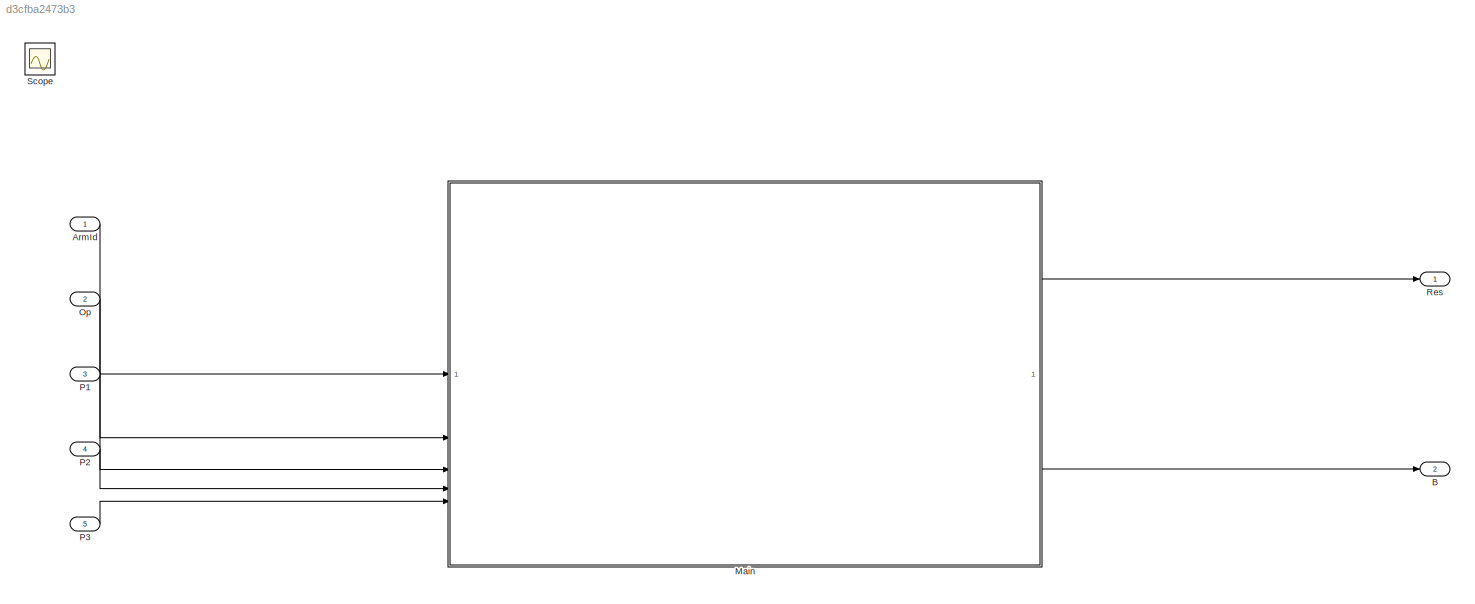
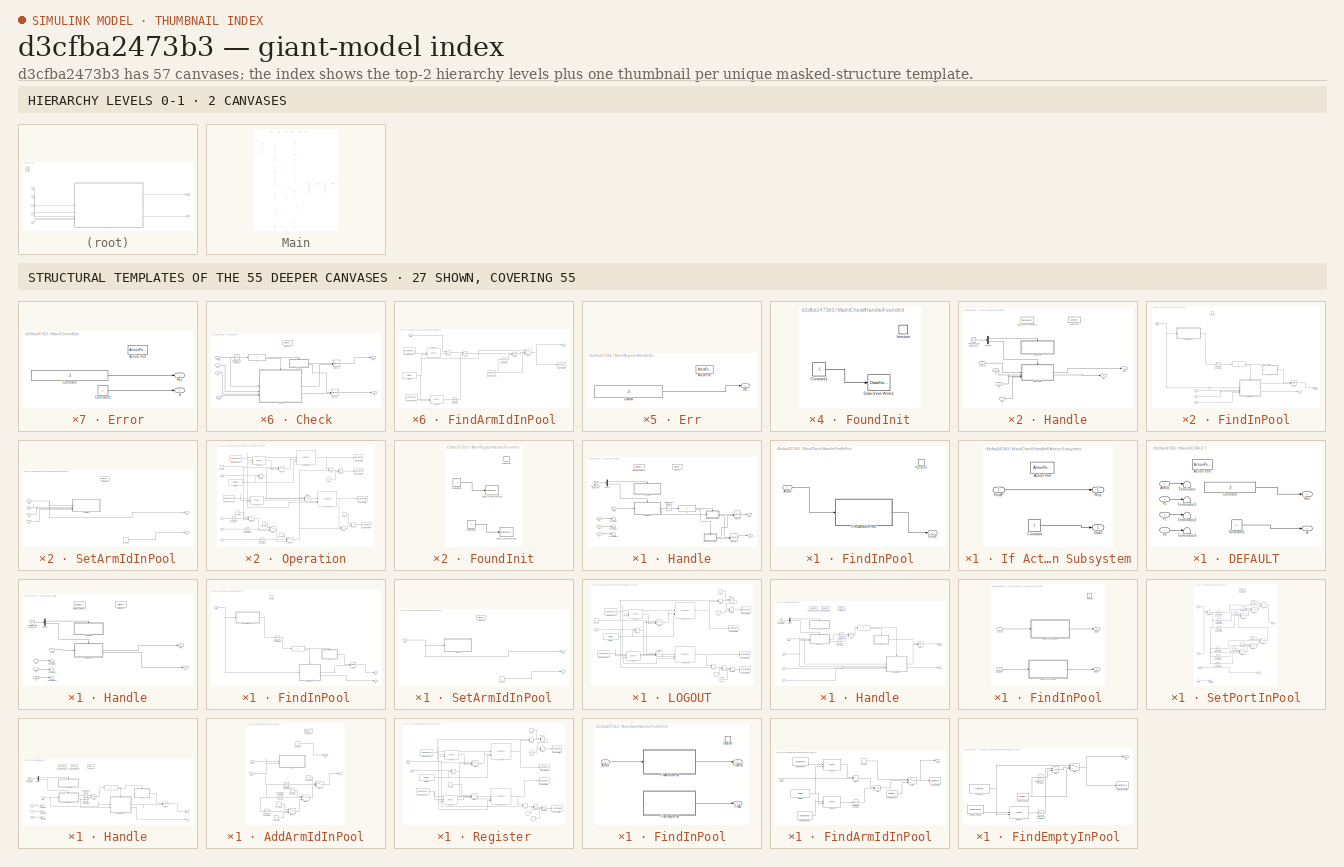
[diagram: thumbnail index - top-2 hierarchy levels (2 canvases) + 27 structural-template representatives of the remaining 55 canvases]
MODEL slx_d3cfba2473b3
KIND model
CONFIG AbsTol = auto
CONFIG EnableMultiTasking = off
CONFIG FixedStep = 1
CONFIG MaxStep = auto
CONFIG MinStep = auto
CONFIG RelTol = 1e-3
CONFIG SampleTimeConstraint = Unconstrained
CONFIG SolverName = FixedStepAuto
CONFIG StartTime = 0.0
CONFIG StopTime = 10.0
BLOCK [Inport] ArmId
  OutDataTypeStr = int32
BLOCK [Outport] B
  Port = 2
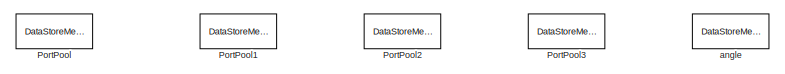
[diagram: Main - part 1/4, top center region]
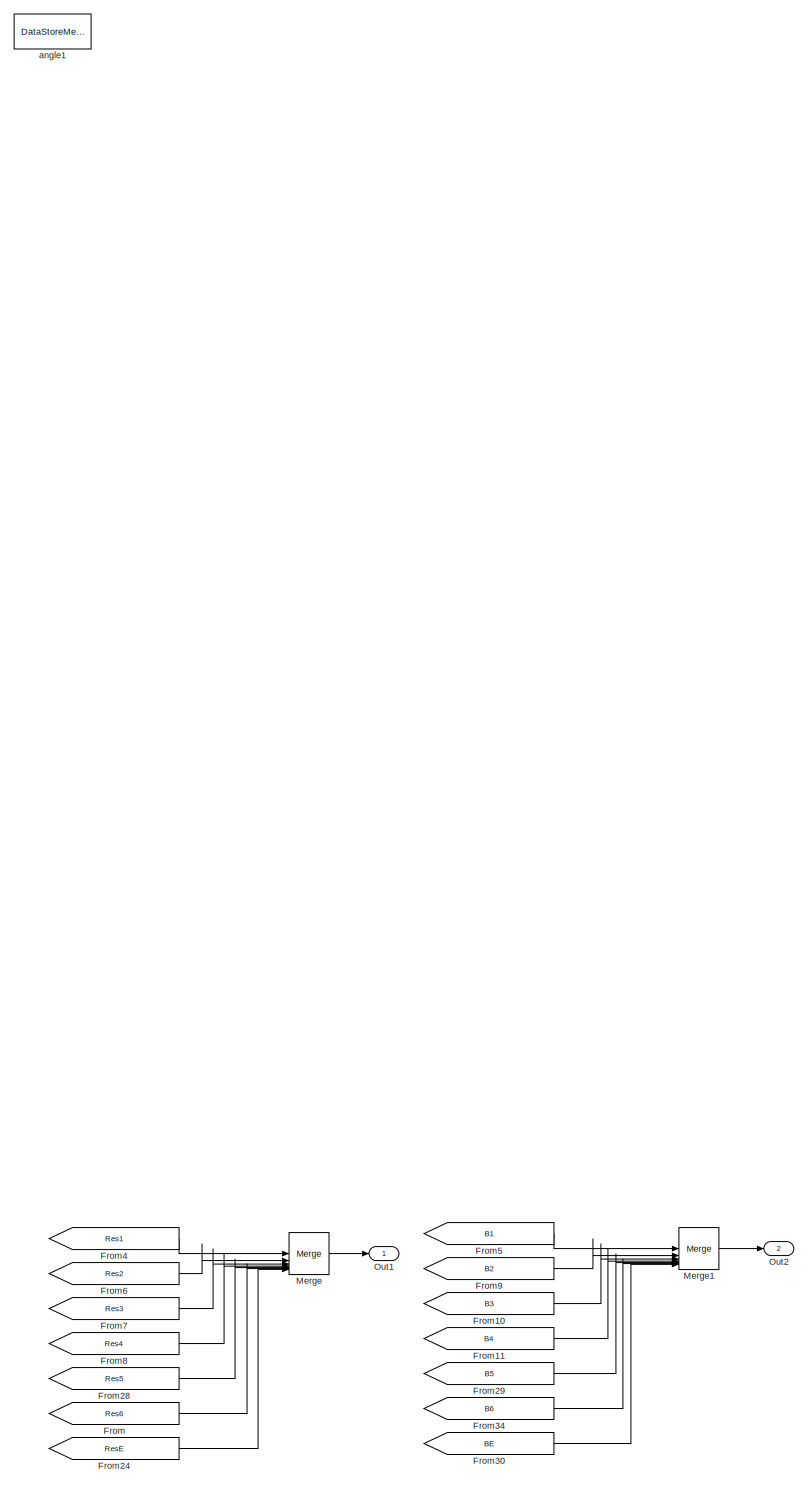
[diagram: Main - part 2/4, top right region]
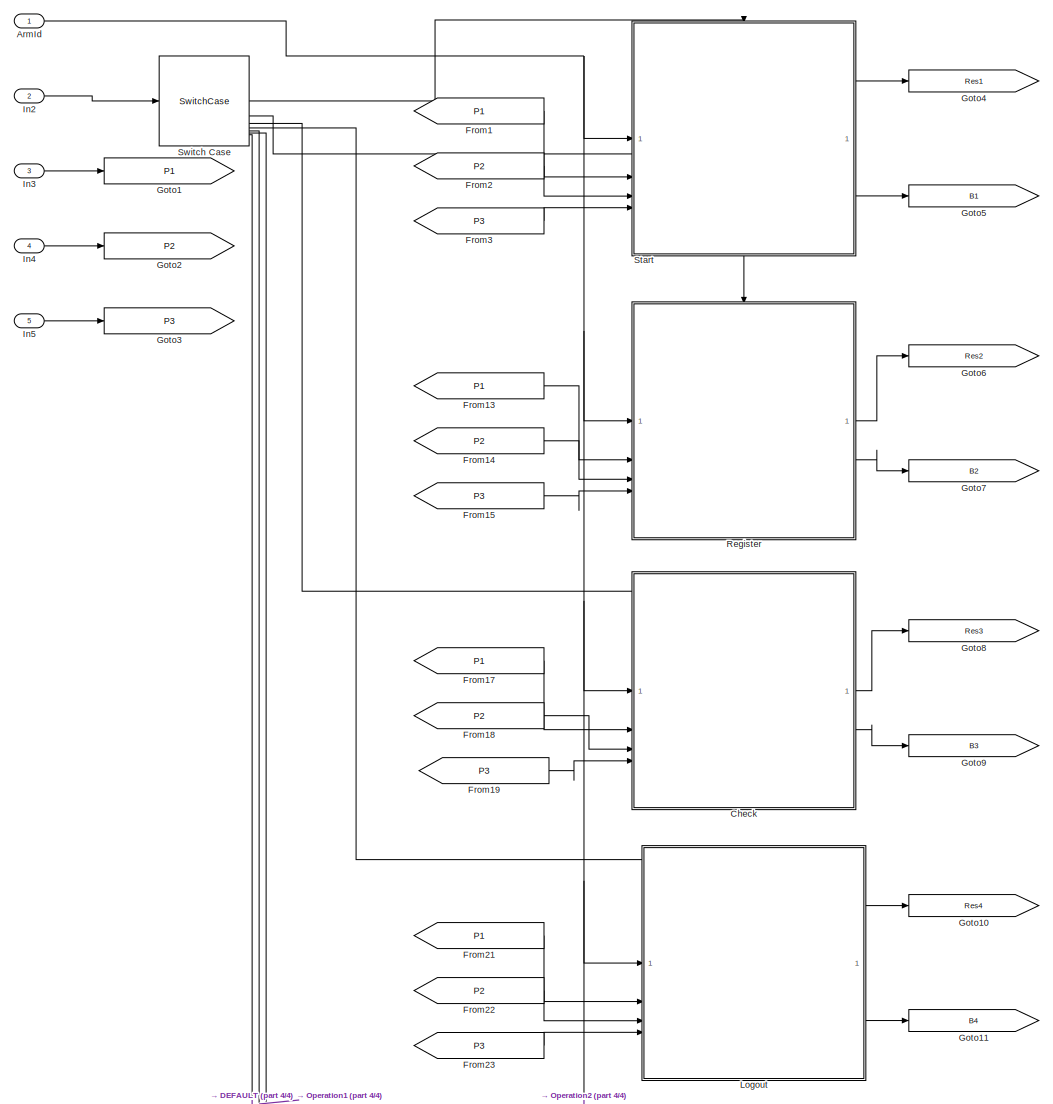
[diagram: Main - part 3/4, top left region]
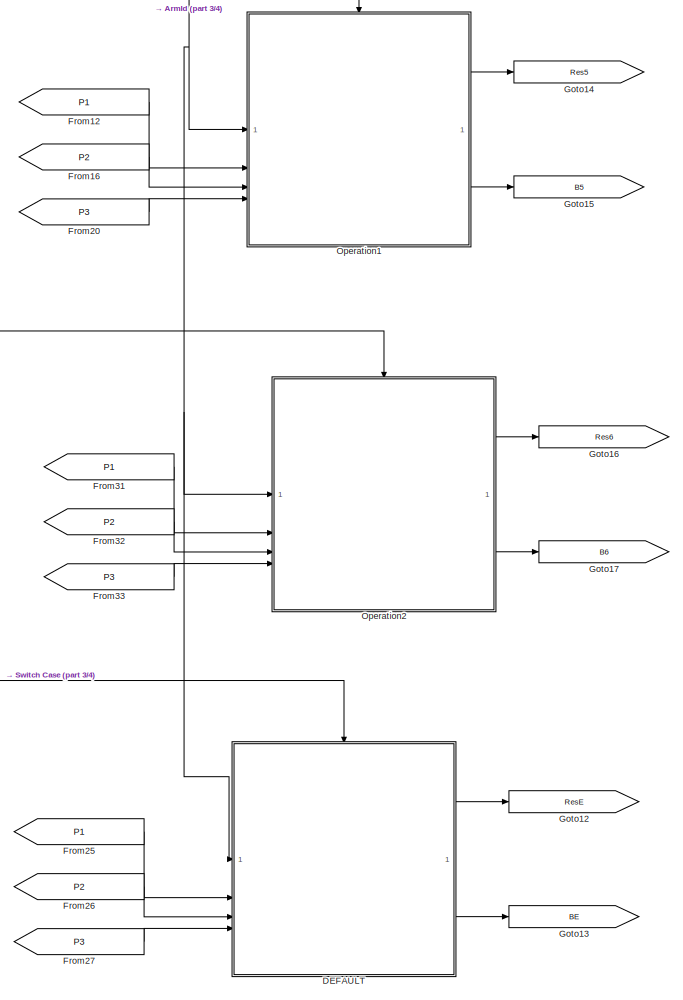
[diagram: Main - part 4/4, bottom center region]
BLOCK [SubSystem] Main
BLOCK [Inport] Main/ArmId
BLOCK [SubSystem] Main/Check
  TreatAsAtomicUnit = on
BLOCK [ActionPort] Main/Check/Action Port
  ActionPortLabel = case [ 10004 ]:
BLOCK [Inport] Main/Check/ArmId
BLOCK [Outport] Main/Check/B
  Port = 2
BLOCK [Reference] Main/Check/Compare To Constant  REF=simulink/Logic and Bit
Operations/Compare
To Constant
  SourceBlock = simulink/Logic and Bit\nOperations/Compare\nTo Constant
  SourceType = Compare To Constant
BLOCK [SubSystem] Main/Check/Error
  TreatAsAtomicUnit = on
BLOCK [ActionPort] Main/Check/Error/Action Port
  ActionPortLabel = if(u1 ~= 0)
BLOCK [Outport] Main/Check/Error/B
  Port = 2
BLOCK [Constant] Main/Check/Error/Constant
  OutDataTypeStr = int32
  Value = -1
BLOCK [Constant] Main/Check/Error/Constant1
  OutDataTypeStr = int32
  Value = 0
BLOCK [Outport] Main/Check/Error/Res
BLOCK [SubSystem] Main/Check/Handle
  TreatAsAtomicUnit = on
BLOCK [ActionPort] Main/Check/Handle/Action Port
  ActionPortLabel = else
BLOCK [Inport] Main/Check/Handle/ArmId
BLOCK [Outport] Main/Check/Handle/B
  Port = 2
BLOCK [Reference] Main/Check/Handle/Compare To Constant  REF=simulink/Logic and Bit
Operations/Compare
To Constant
  SourceBlock = simulink/Logic and Bit\nOperations/Compare\nTo Constant
  SourceType = Compare To Constant
BLOCK [DataStoreMemory] Main/Check/Handle/Data Store Memory1
  DataStoreName = FoundArm
  InitialValue = -1
  OutDataTypeStr = int32
  ShowAdditionalParam = off
  WriteAfterWriteMsg = warning
BLOCK [Demux] Main/Check/Handle/Demux
  Outputs = 2
BLOCK [SubSystem] Main/Check/Handle/FindInPool
BLOCK [Inport] Main/Check/Handle/FindInPool/ArmId
BLOCK [SubSystem] Main/Check/Handle/FindInPool/FindArmIdInPool
  TreatAsAtomicUnit = on
BLOCK [Logic] Main/Check/Handle/FindInPool/FindArmIdInPool/AND
  AllPortsSameDT = off
  IconShape = distinctive
  OutDataTypeStr = boolean
BLOCK [Logic] Main/Check/Handle/FindInPool/FindArmIdInPool/AND1
  AllPortsSameDT = off
  IconShape = distinctive
  OutDataTypeStr = boolean
BLOCK [Inport] Main/Check/Handle/FindInPool/FindArmIdInPool/ArmId
BLOCK [Reference] Main/Check/Handle/FindInPool/FindArmIdInPool/Compare To Constant  REF=simulink/Logic and Bit
Operations/Compare
To Constant
  SourceBlock = simulink/Logic and Bit\nOperations/Compare\nTo Constant
  SourceType = Compare To Constant
BLOCK [Reference] Main/Check/Handle/FindInPool/FindArmIdInPool/Compare To Constant1  REF=simulink/Logic and Bit
Operations/Compare
To Constant
  SourceBlock = simulink/Logic and Bit\nOperations/Compare\nTo Constant
  SourceType = Compare To Constant
BLOCK [DataStoreRead] Main/Check/Handle/FindInPool/FindArmIdInPool/Data Store Read
  DataStoreName = ArmIdPool
  IndexOptions = Index vector (dialog)
  Indices = 1
  OutputSizes = 1
BLOCK [DataStoreRead] Main/Check/Handle/FindInPool/FindArmIdInPool/Data Store Read1
  DataStoreName = FoundArm
  IndexOptions = Index vector (dialog)
  Indices = 1
  OutputSizes = 1
BLOCK [DataStoreRead] Main/Check/Handle/FindInPool/FindArmIdInPool/Data Store Read2
  DataStoreName = ArmIdPoolF
  IndexOptions = Index vector (dialog)
  Indices = 1
  OutputSizes = 1
BLOCK [DataStoreWrite] Main/Check/Handle/FindInPool/FindArmIdInPool/Data Store Write1
  DataStoreName = FoundArm
  IndexOptions = Index vector (dialog)
  Indices = 1
  OutputSizes = 1
BLOCK [RelationalOperator] Main/Check/Handle/FindInPool/FindArmIdInPool/Equal
  InputSameDT = off
  Operator = ==
  OutDataTypeStr = boolean
  RndMeth = Simplest
BLOCK [ForIterator] Main/Check/Handle/FindInPool/FindArmIdInPool/For Iterator
  IndexMode = Zero-based
  IterationLimit = POOL_SIZE
BLOCK [Outport] Main/Check/Handle/FindInPool/FindArmIdInPool/Out1
BLOCK [Selector] Main/Check/Handle/FindInPool/FindArmIdInPool/Selector
  IndexMode = Zero-based
  IndexOptions = Index vector (port)
  Indices = [1 3]
  InputPortWidth = POOL_SIZE
  OutputSizes = 1
BLOCK [Selector] Main/Check/Handle/FindInPool/FindArmIdInPool/Selector1
  IndexMode = Zero-based
  IndexOptions = Index vector (port)
  Indices = [1 3]
  InputPortWidth = POOL_SIZE
  OutputSizes = 1
BLOCK [Switch] Main/Check/Handle/FindInPool/FindArmIdInPool/Switch
  Criteria = u2 ~= 0
  InputSameDT = off
  SaturateOnIntegerOverflow = off
BLOCK [Outport] Main/Check/Handle/FindInPool/FindP
BLOCK [TriggerPort] Main/Check/Handle/FindInPool/function
  StatesWhenEnabling = held
  TriggerType = function-call
  VariantControl = (inherit)
BLOCK [SubSystem] Main/Check/Handle/FoundInit
BLOCK [Constant] Main/Check/Handle/FoundInit/Constant1
  OutDataTypeStr = int32
  Value = -1
BLOCK [DataStoreWrite] Main/Check/Handle/FoundInit/Data Store Write1
  DataStoreName = FoundArm
  IndexOptions = Index vector (dialog)
  Indices = 1
  OutputSizes = 1
BLOCK [TriggerPort] Main/Check/Handle/FoundInit/function
  StatesWhenEnabling = held
  TriggerType = function-call
  VariantControl = (inherit)
BLOCK [Reference] Main/Check/Handle/Function-Call Generator  REF=simulink/Ports &
Subsystems/Function-Call
Generator
  SourceBlock = simulink/Ports &\nSubsystems/Function-Call\nGenerator
  SourceType = Function-Call Generator
BLOCK [If] Main/Check/Handle/If
  IfExpression = u1 ~= 0
BLOCK [SubSystem] Main/Check/Handle/If Action Subsystem
  TreatAsAtomicUnit = on
BLOCK [ActionPort] Main/Check/Handle/If Action Subsystem/Action Port
  ActionPortLabel = if(u1 ~= 0)
BLOCK [Constant] Main/Check/Handle/If Action Subsystem/Constant
  OutDataTypeStr = int32
BLOCK [Inport] Main/Check/Handle/If Action Subsystem/FindP
BLOCK [Outport] Main/Check/Handle/If Action Subsystem/Out2
  Port = 2
BLOCK [Outport] Main/Check/Handle/If Action Subsystem/Res
BLOCK [SubSystem] Main/Check/Handle/If Action Subsystem1
  TreatAsAtomicUnit = on
BLOCK [ActionPort] Main/Check/Handle/If Action Subsystem1/Action Port
  ActionPortLabel = else
BLOCK [Constant] Main/Check/Handle/If Action Subsystem1/Constant
  OutDataTypeStr = int32
  Value = -1
BLOCK [Constant] Main/Check/Handle/If Action Subsystem1/Constant1
  OutDataTypeStr = int32
  Value = -1
BLOCK [Outport] Main/Check/Handle/If Action Subsystem1/Out2
  Port = 2
BLOCK [Outport] Main/Check/Handle/If Action Subsystem1/Res
BLOCK [Merge] Main/Check/Handle/Merge
BLOCK [Merge] Main/Check/Handle/Merge1
BLOCK [Inport] Main/Check/Handle/P1
  Port = 2
BLOCK [Inport] Main/Check/Handle/P2
  Port = 3
BLOCK [Inport] Main/Check/Handle/P3
  Port = 4
BLOCK [Outport] Main/Check/Handle/Res
BLOCK [Terminator] Main/Check/Handle/Terminator
BLOCK [Terminator] Main/Check/Handle/Terminator1
BLOCK [Terminator] Main/Check/Handle/Terminator2
BLOCK [If] Main/Check/If
  IfExpression = u1 ~= 0
BLOCK [Merge] Main/Check/Merge
BLOCK [Merge] Main/Check/Merge1
BLOCK [Inport] Main/Check/P1
  Port = 2
BLOCK [Inport] Main/Check/P2
  Port = 3
BLOCK [Inport] Main/Check/P3
  Port = 4
BLOCK [Outport] Main/Check/Res
BLOCK [SubSystem] Main/DEFAULT
  TreatAsAtomicUnit = on
BLOCK [ActionPort] Main/DEFAULT/Action Port
  ActionPortLabel = default:
BLOCK [Inport] Main/DEFAULT/ArmId
BLOCK [Outport] Main/DEFAULT/B
  Port = 2
BLOCK [Constant] Main/DEFAULT/Constant
  OutDataTypeStr = int32
  Value = -2
BLOCK [Constant] Main/DEFAULT/Constant1
  OutDataTypeStr = int32
  Value = 0
BLOCK [Inport] Main/DEFAULT/P1
  Port = 2
BLOCK [Inport] Main/DEFAULT/P2
  Port = 3
BLOCK [Inport] Main/DEFAULT/P3
  Port = 4
BLOCK [Outport] Main/DEFAULT/Res
BLOCK [Terminator] Main/DEFAULT/Terminator
BLOCK [Terminator] Main/DEFAULT/Terminator1
BLOCK [Terminator] Main/DEFAULT/Terminator2
BLOCK [Terminator] Main/DEFAULT/Terminator3
BLOCK [From] Main/From
  GotoTag = Res6
BLOCK [From] Main/From1
  GotoTag = P1
BLOCK [From] Main/From10
  GotoTag = B3
BLOCK [From] Main/From11
  GotoTag = B4
BLOCK [From] Main/From12
  GotoTag = P1
BLOCK [From] Main/From13
  GotoTag = P1
BLOCK [From] Main/From14
  GotoTag = P2
BLOCK [From] Main/From15
  GotoTag = P3
BLOCK [From] Main/From16
  GotoTag = P2
BLOCK [From] Main/From17
  GotoTag = P1
BLOCK [From] Main/From18
  GotoTag = P2
BLOCK [From] Main/From19
  GotoTag = P3
BLOCK [From] Main/From2
  GotoTag = P2
BLOCK [From] Main/From20
  GotoTag = P3
BLOCK [From] Main/From21
  GotoTag = P1
BLOCK [From] Main/From22
  GotoTag = P2
BLOCK [From] Main/From23
  GotoTag = P3
BLOCK [From] Main/From24
  GotoTag = ResE
BLOCK [From] Main/From25
  GotoTag = P1
BLOCK [From] Main/From26
  GotoTag = P2
BLOCK [From] Main/From27
  GotoTag = P3
BLOCK [From] Main/From28
  GotoTag = Res5
BLOCK [From] Main/From29
  GotoTag = B5
BLOCK [From] Main/From3
  GotoTag = P3
BLOCK [From] Main/From30
  GotoTag = BE
BLOCK [From] Main/From31
  GotoTag = P1
BLOCK [From] Main/From32
  GotoTag = P2
BLOCK [From] Main/From33
  GotoTag = P3
BLOCK [From] Main/From34
  GotoTag = B6
BLOCK [From] Main/From4
  GotoTag = Res1
BLOCK [From] Main/From5
  GotoTag = B1
BLOCK [From] Main/From6
  GotoTag = Res2
BLOCK [From] Main/From7
  GotoTag = Res3
BLOCK [From] Main/From8
  GotoTag = Res4
BLOCK [From] Main/From9
  GotoTag = B2
BLOCK [Goto] Main/Goto1
  GotoTag = P1
BLOCK [Goto] Main/Goto10
  GotoTag = Res4
BLOCK [Goto] Main/Goto11
  GotoTag = B4
BLOCK [Goto] Main/Goto12
  GotoTag = ResE
BLOCK [Goto] Main/Goto13
  GotoTag = BE
BLOCK [Goto] Main/Goto14
  GotoTag = Res5
BLOCK [Goto] Main/Goto15
  GotoTag = B5
BLOCK [Goto] Main/Goto16
  GotoTag = Res6
BLOCK [Goto] Main/Goto17
  GotoTag = B6
BLOCK [Goto] Main/Goto2
  GotoTag = P2
BLOCK [Goto] Main/Goto3
  GotoTag = P3
BLOCK [Goto] Main/Goto4
  GotoTag = Res1
BLOCK [Goto] Main/Goto5
  GotoTag = B1
BLOCK [Goto] Main/Goto6
  GotoTag = Res2
BLOCK [Goto] Main/Goto7
  GotoTag = B2
BLOCK [Goto] Main/Goto8
  GotoTag = Res3
BLOCK [Goto] Main/Goto9
  GotoTag = B3
BLOCK [Inport] Main/In2
  Port = 2
BLOCK [Inport] Main/In3
  Port = 3
BLOCK [Inport] Main/In4
  Port = 4
BLOCK [Inport] Main/In5
  Port = 5
BLOCK [SubSystem] Main/Logout
  TreatAsAtomicUnit = on
BLOCK [ActionPort] Main/Logout/Action Port
  ActionPortLabel = case [ 10008 ]:
BLOCK [Inport] Main/Logout/ArmId
BLOCK [Outport] Main/Logout/B
  Port = 2
BLOCK [Reference] Main/Logout/Compare To Constant  REF=simulink/Logic and Bit
Operations/Compare
To Constant
  SourceBlock = simulink/Logic and Bit\nOperations/Compare\nTo Constant
  SourceType = Compare To Constant
BLOCK [SubSystem] Main/Logout/Error
  TreatAsAtomicUnit = on
BLOCK [ActionPort] Main/Logout/Error/Action Port
  ActionPortLabel = if(u1 ~= 0)
BLOCK [Outport] Main/Logout/Error/B
  Port = 2
BLOCK [Constant] Main/Logout/Error/Constant
  OutDataTypeStr = int32
  Value = -1
BLOCK [Constant] Main/Logout/Error/Constant1
  OutDataTypeStr = int32
  Value = 0
BLOCK [Outport] Main/Logout/Error/Res
BLOCK [SubSystem] Main/Logout/Handle
  TreatAsAtomicUnit = on
BLOCK [ActionPort] Main/Logout/Handle/Action Port
  ActionPortLabel = else
BLOCK [Inport] Main/Logout/Handle/ArmId
BLOCK [Outport] Main/Logout/Handle/B
  Port = 2
BLOCK [DataStoreMemory] Main/Logout/Handle/Data Store Memory1
  DataStoreName = FoundArm
  InitialValue = -1
  OutDataTypeStr = int32
  ShowAdditionalParam = off
  WriteAfterWriteMsg = warning
BLOCK [Demux] Main/Logout/Handle/Demux
  Outputs = 2
BLOCK [SubSystem] Main/Logout/Handle/FindInPool
BLOCK [Inport] Main/Logout/Handle/FindInPool/ArmId
BLOCK [Outport] Main/Logout/Handle/FindInPool/B
  Port = 2
BLOCK [Reference] Main/Logout/Handle/FindInPool/Compare To Constant1  REF=simulink/Logic and Bit
Operations/Compare
To Constant
  SourceBlock = simulink/Logic and Bit\nOperations/Compare\nTo Constant
  SourceType = Compare To Constant
BLOCK [SubSystem] Main/Logout/Handle/FindInPool/Err
  TreatAsAtomicUnit = on
BLOCK [ActionPort] Main/Logout/Handle/FindInPool/Err/Action Port
  ActionPortLabel = if(u1 ~= 0)
BLOCK [Constant] Main/Logout/Handle/FindInPool/Err/Constant
  OutDataTypeStr = int32
  Value = -3
BLOCK [Outport] Main/Logout/Handle/FindInPool/Err/Res
BLOCK [SubSystem] Main/Logout/Handle/FindInPool/FindArmIdInPool
  TreatAsAtomicUnit = on
BLOCK [Logic] Main/Logout/Handle/FindInPool/FindArmIdInPool/AND
  AllPortsSameDT = off
  IconShape = distinctive
  OutDataTypeStr = boolean
BLOCK [Logic] Main/Logout/Handle/FindInPool/FindArmIdInPool/AND1
  AllPortsSameDT = off
  IconShape = distinctive
  OutDataTypeStr = boolean
BLOCK [Inport] Main/Logout/Handle/FindInPool/FindArmIdInPool/ArmId
BLOCK [Reference] Main/Logout/Handle/FindInPool/FindArmIdInPool/Compare To Constant  REF=simulink/Logic and Bit
Operations/Compare
To Constant
  SourceBlock = simulink/Logic and Bit\nOperations/Compare\nTo Constant
  SourceType = Compare To Constant
BLOCK [Reference] Main/Logout/Handle/FindInPool/FindArmIdInPool/Compare To Constant1  REF=simulink/Logic and Bit
Operations/Compare
To Constant
  SourceBlock = simulink/Logic and Bit\nOperations/Compare\nTo Constant
  SourceType = Compare To Constant
BLOCK [DataStoreRead] Main/Logout/Handle/FindInPool/FindArmIdInPool/Data Store Read
  DataStoreName = ArmIdPool
  IndexOptions = Index vector (dialog)
  Indices = 1
  OutputSizes = 1
BLOCK [DataStoreRead] Main/Logout/Handle/FindInPool/FindArmIdInPool/Data Store Read1
  DataStoreName = FoundArm
  IndexOptions = Index vector (dialog)
  Indices = 1
  OutputSizes = 1
BLOCK [DataStoreRead] Main/Logout/Handle/FindInPool/FindArmIdInPool/Data Store Read2
  DataStoreName = ArmIdPoolF
  IndexOptions = Index vector (dialog)
  Indices = 1
  OutputSizes = 1
BLOCK [DataStoreWrite] Main/Logout/Handle/FindInPool/FindArmIdInPool/Data Store Write1
  DataStoreName = FoundArm
  IndexOptions = Index vector (dialog)
  Indices = 1
  OutputSizes = 1
BLOCK [RelationalOperator] Main/Logout/Handle/FindInPool/FindArmIdInPool/Equal
  InputSameDT = off
  Operator = ==
  OutDataTypeStr = boolean
  RndMeth = Simplest
BLOCK [ForIterator] Main/Logout/Handle/FindInPool/FindArmIdInPool/For Iterator
  IndexMode = Zero-based
  IterationLimit = POOL_SIZE
BLOCK [Outport] Main/Logout/Handle/FindInPool/FindArmIdInPool/Out1
BLOCK [Selector] Main/Logout/Handle/FindInPool/FindArmIdInPool/Selector
  IndexMode = Zero-based
  IndexOptions = Index vector (port)
  Indices = [1 3]
  InputPortWidth = POOL_SIZE
  OutputSizes = 1
BLOCK [Selector] Main/Logout/Handle/FindInPool/FindArmIdInPool/Selector1
  IndexMode = Zero-based
  IndexOptions = Index vector (port)
  Indices = [1 3]
  InputPortWidth = POOL_SIZE
  OutputSizes = 1
BLOCK [Switch] Main/Logout/Handle/FindInPool/FindArmIdInPool/Switch
  Criteria = u2 ~= 0
  InputSameDT = off
  SaturateOnIntegerOverflow = off
BLOCK [If] Main/Logout/Handle/FindInPool/If
  IfExpression = u1 ~= 0
BLOCK [Merge] Main/Logout/Handle/FindInPool/Merge
BLOCK [Outport] Main/Logout/Handle/FindInPool/Res
BLOCK [SubSystem] Main/Logout/Handle/FindInPool/SetArmIdInPool
  TreatAsAtomicUnit = on
BLOCK [ActionPort] Main/Logout/Handle/FindInPool/SetArmIdInPool/Action Port
  ActionPortLabel = else
BLOCK [Inport] Main/Logout/Handle/FindInPool/SetArmIdInPool/ArmId
BLOCK [Outport] Main/Logout/Handle/FindInPool/SetArmIdInPool/B
  Port = 2
BLOCK [Constant] Main/Logout/Handle/FindInPool/SetArmIdInPool/Constant
  OutDataTypeStr = int32
BLOCK [SubSystem] Main/Logout/Handle/FindInPool/SetArmIdInPool/LOGOUT
  TreatAsAtomicUnit = on
BLOCK [Sum] Main/Logout/Handle/FindInPool/SetArmIdInPool/LOGOUT/Add
  IconShape = rectangular
  OutDataTypeStr = int32
BLOCK [Sum] Main/Logout/Handle/FindInPool/SetArmIdInPool/LOGOUT/Add1
  IconShape = rectangular
  OutDataTypeStr = int32
BLOCK [Assignment] Main/Logout/Handle/FindInPool/SetArmIdInPool/LOGOUT/Assignment
  DiagnosticForDimensions = Warning
  IndexMode = Zero-based
  IndexOptions = Index vector (port)
  Indices = 1
  OutputSizes = 1
BLOCK [Assignment] Main/Logout/Handle/FindInPool/SetArmIdInPool/LOGOUT/Assignment1
  DiagnosticForDimensions = Warning
  IndexMode = Zero-based
  IndexOptions = Index vector (port)
  Indices = 1
  OutputSizes = 1
BLOCK [Constant] Main/Logout/Handle/FindInPool/SetArmIdInPool/LOGOUT/Constant
  OutDataTypeStr = int32
  Value = 0
BLOCK [DataStoreRead] Main/Logout/Handle/FindInPool/SetArmIdInPool/LOGOUT/Data Store Read
  DataStoreName = ArmIdPool
  IndexOptions = Index vector (dialog)
  Indices = 1
  OutputSizes = 1
BLOCK [DataStoreRead] Main/Logout/Handle/FindInPool/SetArmIdInPool/LOGOUT/Data Store Read2
  DataStoreName = ArmIdPoolF
  IndexOptions = Index vector (dialog)
  Indices = 1
  OutputSizes = 1
BLOCK [DataStoreWrite] Main/Logout/Handle/FindInPool/SetArmIdInPool/LOGOUT/Data Store Write2
  DataStoreName = ArmIdPool
  IndexOptions = Index vector (dialog)
  Indices = 1
  OutputSizes = 1
BLOCK [DataStoreWrite] Main/Logout/Handle/FindInPool/SetArmIdInPool/LOGOUT/Data Store Write3
  DataStoreName = ArmIdPoolF
  IndexOptions = Index vector (dialog)
  Indices = 1
  OutputSizes = 1
BLOCK [DataStoreWrite] Main/Logout/Handle/FindInPool/SetArmIdInPool/LOGOUT/Data Store Write4
  DataStoreName = ArmIdPool_C
  IndexOptions = Index vector (dialog)
  Indices = 1
  OutputSizes = 1
BLOCK [DataStoreWrite] Main/Logout/Handle/FindInPool/SetArmIdInPool/LOGOUT/Data Store Write5
  DataStoreName = ArmIdPoolF_C
  IndexOptions = Index vector (dialog)
  Indices = 1
  OutputSizes = 1
BLOCK [RelationalOperator] Main/Logout/Handle/FindInPool/SetArmIdInPool/LOGOUT/Equal
  InputSameDT = off
  Operator = ==
  OutDataTypeStr = boolean
  RndMeth = Simplest
BLOCK [Inport] Main/Logout/Handle/FindInPool/SetArmIdInPool/LOGOUT/FindP
BLOCK [ForIterator] Main/Logout/Handle/FindInPool/SetArmIdInPool/LOGOUT/For Iterator
  IndexMode = Zero-based
  IterationLimit = POOL_SIZE
BLOCK [Product] Main/Logout/Handle/FindInPool/SetArmIdInPool/LOGOUT/Product
  OutDataTypeStr = int32
BLOCK [Product] Main/Logout/Handle/FindInPool/SetArmIdInPool/LOGOUT/Product1
  OutDataTypeStr = int32
BLOCK [Selector] Main/Logout/Handle/FindInPool/SetArmIdInPool/LOGOUT/Selector
  IndexMode = Zero-based
  IndexOptions = Index vector (port)
  Indices = [1 3]
  InputPortWidth = POOL_SIZE
  OutputSizes = 1
BLOCK [Selector] Main/Logout/Handle/FindInPool/SetArmIdInPool/LOGOUT/Selector1
  IndexMode = Zero-based
  IndexOptions = Index vector (port)
  Indices = [1 3]
  InputPortWidth = POOL_SIZE
  OutputSizes = 1
BLOCK [Sum] Main/Logout/Handle/FindInPool/SetArmIdInPool/LOGOUT/Subtract
  IconShape = rectangular
  Inputs = +-
  OutDataTypeStr = int32
BLOCK [Sum] Main/Logout/Handle/FindInPool/SetArmIdInPool/LOGOUT/Subtract1
  IconShape = rectangular
  Inputs = +-
  OutDataTypeStr = int32
BLOCK [Switch] Main/Logout/Handle/FindInPool/SetArmIdInPool/LOGOUT/Switch
  Criteria = u2 > Threshold
  InputSameDT = off
  SaturateOnIntegerOverflow = off
BLOCK [Switch] Main/Logout/Handle/FindInPool/SetArmIdInPool/LOGOUT/Switch1
  Criteria = u2 > Threshold
  InputSameDT = off
  SaturateOnIntegerOverflow = off
BLOCK [Constant] Main/Logout/Handle/FindInPool/SetArmIdInPool/LOGOUT/T
  OutDataTypeStr = int32
  Value = 4
BLOCK [Constant] Main/Logout/Handle/FindInPool/SetArmIdInPool/LOGOUT/delta
  OutDataTypeStr = int32
  Value = 3
BLOCK [Constant] Main/Logout/Handle/FindInPool/SetArmIdInPool/LOGOUT/key
  OutDataTypeStr = int32
  Value = 201
BLOCK [Constant] Main/Logout/Handle/FindInPool/SetArmIdInPool/LOGOUT/key1
  OutDataTypeStr = int32
  Value = 201
BLOCK [Outport] Main/Logout/Handle/FindInPool/SetArmIdInPool/Res
BLOCK [TriggerPort] Main/Logout/Handle/FindInPool/function
  StatesWhenEnabling = held
  TriggerType = function-call
  VariantControl = (inherit)
BLOCK [SubSystem] Main/Logout/Handle/FoundInit
BLOCK [Constant] Main/Logout/Handle/FoundInit/Constant1
  OutDataTypeStr = int32
  Value = -1
BLOCK [DataStoreWrite] Main/Logout/Handle/FoundInit/Data Store Write1
  DataStoreName = FoundArm
  IndexOptions = Index vector (dialog)
  Indices = 1
  OutputSizes = 1
BLOCK [TriggerPort] Main/Logout/Handle/FoundInit/function
  StatesWhenEnabling = held
  TriggerType = function-call
  VariantControl = (inherit)
BLOCK [Reference] Main/Logout/Handle/Function-Call Generator  REF=simulink/Ports &
Subsystems/Function-Call
Generator
  SourceBlock = simulink/Ports &\nSubsystems/Function-Call\nGenerator
  SourceType = Function-Call Generator
BLOCK [Inport] Main/Logout/Handle/P1
  Port = 2
BLOCK [Inport] Main/Logout/Handle/P2
  Port = 3
BLOCK [Inport] Main/Logout/Handle/P3
  Port = 4
BLOCK [Outport] Main/Logout/Handle/Res
BLOCK [Terminator] Main/Logout/Handle/Terminator
BLOCK [Terminator] Main/Logout/Handle/Terminator1
BLOCK [Terminator] Main/Logout/Handle/Terminator2
BLOCK [If] Main/Logout/If
  IfExpression = u1 ~= 0
BLOCK [Merge] Main/Logout/Merge
BLOCK [Merge] Main/Logout/Merge1
BLOCK [Inport] Main/Logout/P1
  Port = 2
BLOCK [Inport] Main/Logout/P2
  Port = 3
BLOCK [Inport] Main/Logout/P3
  Port = 4
BLOCK [Outport] Main/Logout/Res
BLOCK [Merge] Main/Merge
  Inputs = 7
BLOCK [Merge] Main/Merge1
  Inputs = 7
BLOCK [SubSystem] Main/Operation1
  TreatAsAtomicUnit = on
BLOCK [ActionPort] Main/Operation1/Action Port
  ActionPortLabel = case [ 10016 ]:
BLOCK [Inport] Main/Operation1/ArmId
BLOCK [Outport] Main/Operation1/B
  Port = 2
BLOCK [Reference] Main/Operation1/Compare To Constant  REF=simulink/Logic and Bit
Operations/Compare
To Constant
  SourceBlock = simulink/Logic and Bit\nOperations/Compare\nTo Constant
  SourceType = Compare To Constant
BLOCK [SubSystem] Main/Operation1/Error
  TreatAsAtomicUnit = on
BLOCK [ActionPort] Main/Operation1/Error/Action Port
  ActionPortLabel = if(u1 ~= 0)
BLOCK [Outport] Main/Operation1/Error/B
  Port = 2
BLOCK [Constant] Main/Operation1/Error/Constant
  OutDataTypeStr = int32
  Value = -1
BLOCK [Constant] Main/Operation1/Error/Constant1
  OutDataTypeStr = int32
  Value = 0
BLOCK [Outport] Main/Operation1/Error/Res
BLOCK [SubSystem] Main/Operation1/Handle
  TreatAsAtomicUnit = on
BLOCK [ActionPort] Main/Operation1/Handle/Action Port
  ActionPortLabel = else
BLOCK [Inport] Main/Operation1/Handle/ArmId
BLOCK [Outport] Main/Operation1/Handle/B
  Port = 2
BLOCK [DataStoreMemory] Main/Operation1/Handle/Data Store Memory1
  DataStoreName = FoundArm
  InitialValue = -1
  OutDataTypeStr = int32
  ShowAdditionalParam = off
  WriteAfterWriteMsg = warning
BLOCK [Demux] Main/Operation1/Handle/Demux
  Outputs = 2
BLOCK [SubSystem] Main/Operation1/Handle/FindInPool
BLOCK [Inport] Main/Operation1/Handle/FindInPool/ArmId
BLOCK [Outport] Main/Operation1/Handle/FindInPool/B
  Port = 2
BLOCK [Reference] Main/Operation1/Handle/FindInPool/Compare To Constant1  REF=simulink/Logic and Bit
Operations/Compare
To Constant
  SourceBlock = simulink/Logic and Bit\nOperations/Compare\nTo Constant
  SourceType = Compare To Constant
BLOCK [SubSystem] Main/Operation1/Handle/FindInPool/Err
  TreatAsAtomicUnit = on
BLOCK [ActionPort] Main/Operation1/Handle/FindInPool/Err/Action Port
  ActionPortLabel = if(u1 ~= 0)
BLOCK [Constant] Main/Operation1/Handle/FindInPool/Err/Constant
  OutDataTypeStr = int32
  Value = -3
BLOCK [Outport] Main/Operation1/Handle/FindInPool/Err/Res
BLOCK [SubSystem] Main/Operation1/Handle/FindInPool/FindArmIdInPool
  TreatAsAtomicUnit = on
BLOCK [Logic] Main/Operation1/Handle/FindInPool/FindArmIdInPool/AND
  AllPortsSameDT = off
  IconShape = distinctive
  OutDataTypeStr = boolean
BLOCK [Logic] Main/Operation1/Handle/FindInPool/FindArmIdInPool/AND1
  AllPortsSameDT = off
  IconShape = distinctive
  OutDataTypeStr = boolean
BLOCK [Inport] Main/Operation1/Handle/FindInPool/FindArmIdInPool/ArmId
BLOCK [Reference] Main/Operation1/Handle/FindInPool/FindArmIdInPool/Compare To Constant  REF=simulink/Logic and Bit
Operations/Compare
To Constant
  SourceBlock = simulink/Logic and Bit\nOperations/Compare\nTo Constant
  SourceType = Compare To Constant
BLOCK [Reference] Main/Operation1/Handle/FindInPool/FindArmIdInPool/Compare To Constant1  REF=simulink/Logic and Bit
Operations/Compare
To Constant
  SourceBlock = simulink/Logic and Bit\nOperations/Compare\nTo Constant
  SourceType = Compare To Constant
BLOCK [DataStoreRead] Main/Operation1/Handle/FindInPool/FindArmIdInPool/Data Store Read
  DataStoreName = ArmIdPool
  IndexOptions = Index vector (dialog)
  Indices = 1
  OutputSizes = 1
BLOCK [DataStoreRead] Main/Operation1/Handle/FindInPool/FindArmIdInPool/Data Store Read1
  DataStoreName = FoundArm
  IndexOptions = Index vector (dialog)
  Indices = 1
  OutputSizes = 1
BLOCK [DataStoreRead] Main/Operation1/Handle/FindInPool/FindArmIdInPool/Data Store Read2
  DataStoreName = ArmIdPoolF
  IndexOptions = Index vector (dialog)
  Indices = 1
  OutputSizes = 1
BLOCK [DataStoreWrite] Main/Operation1/Handle/FindInPool/FindArmIdInPool/Data Store Write1
  DataStoreName = FoundArm
  IndexOptions = Index vector (dialog)
  Indices = 1
  OutputSizes = 1
BLOCK [RelationalOperator] Main/Operation1/Handle/FindInPool/FindArmIdInPool/Equal
  InputSameDT = off
  Operator = ==
  OutDataTypeStr = boolean
  RndMeth = Simplest
BLOCK [ForIterator] Main/Operation1/Handle/FindInPool/FindArmIdInPool/For Iterator
  IndexMode = Zero-based
  IterationLimit = POOL_SIZE
BLOCK [Outport] Main/Operation1/Handle/FindInPool/FindArmIdInPool/Out1
BLOCK [Selector] Main/Operation1/Handle/FindInPool/FindArmIdInPool/Selector
  IndexMode = Zero-based
  IndexOptions = Index vector (port)
  Indices = [1 3]
  InputPortWidth = POOL_SIZE
  OutputSizes = 1
BLOCK [Selector] Main/Operation1/Handle/FindInPool/FindArmIdInPool/Selector1
  IndexMode = Zero-based
  IndexOptions = Index vector (port)
  Indices = [1 3]
  InputPortWidth = POOL_SIZE
  OutputSizes = 1
BLOCK [Switch] Main/Operation1/Handle/FindInPool/FindArmIdInPool/Switch
  Criteria = u2 ~= 0
  InputSameDT = off
  SaturateOnIntegerOverflow = off
BLOCK [If] Main/Operation1/Handle/FindInPool/If
  IfExpression = u1 ~= 0
BLOCK [Merge] Main/Operation1/Handle/FindInPool/Merge
BLOCK [Inport] Main/Operation1/Handle/FindInPool/P1
  Port = 2
BLOCK [Inport] Main/Operation1/Handle/FindInPool/P2
  Port = 3
BLOCK [Inport] Main/Operation1/Handle/FindInPool/P3
  Port = 4
BLOCK [Outport] Main/Operation1/Handle/FindInPool/Res
BLOCK [SubSystem] Main/Operation1/Handle/FindInPool/SetArmIdInPool
  TreatAsAtomicUnit = on
BLOCK [ActionPort] Main/Operation1/Handle/FindInPool/SetArmIdInPool/Action Port
  ActionPortLabel = else
BLOCK [Inport] Main/Operation1/Handle/FindInPool/SetArmIdInPool/ArmId
BLOCK [Outport] Main/Operation1/Handle/FindInPool/SetArmIdInPool/B
  Port = 2
BLOCK [Constant] Main/Operation1/Handle/FindInPool/SetArmIdInPool/Constant
  OutDataTypeStr = int32
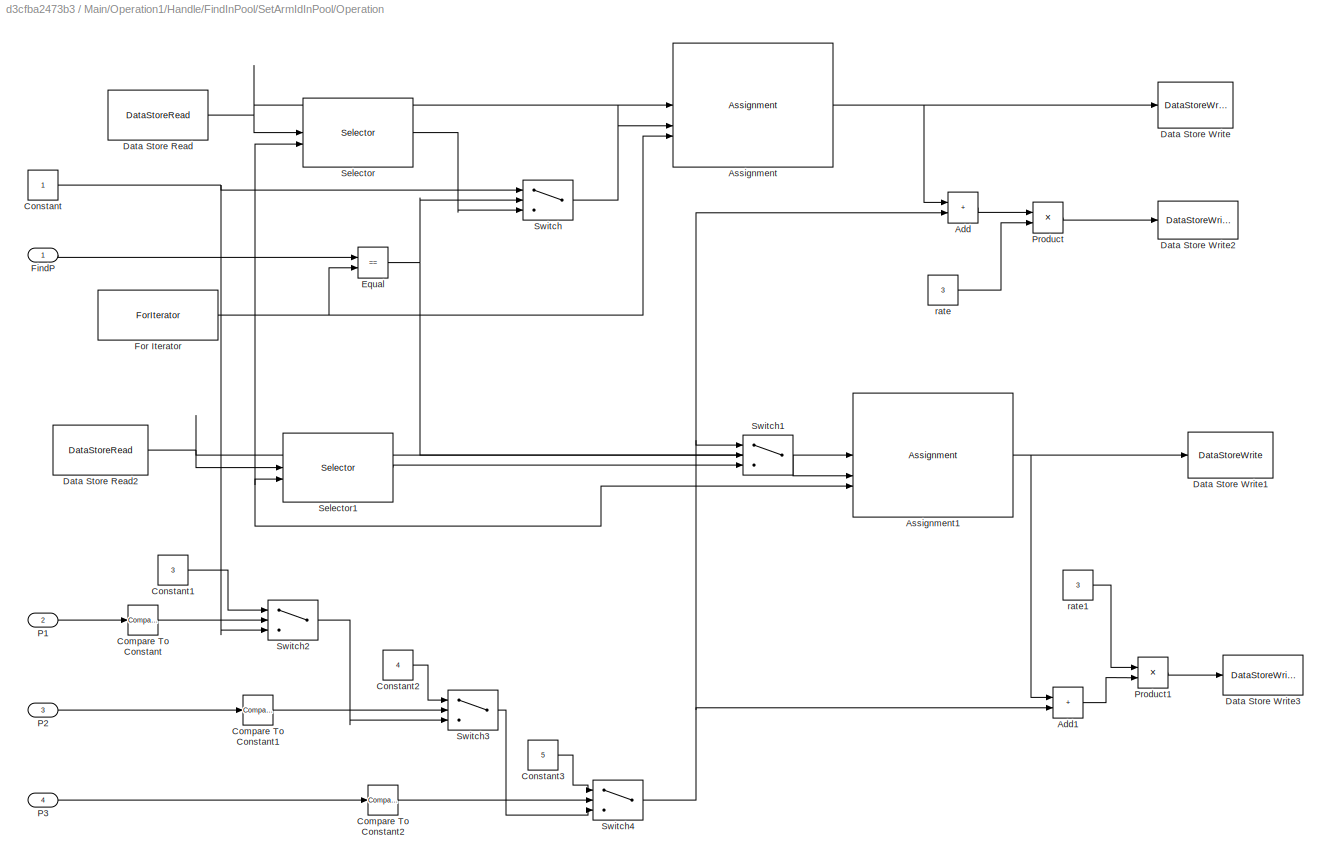
BLOCK [SubSystem] Main/Operation1/Handle/FindInPool/SetArmIdInPool/Operation
  TreatAsAtomicUnit = on
BLOCK [Sum] Main/Operation1/Handle/FindInPool/SetArmIdInPool/Operation/Add
  AccumDataTypeStr = int32
  IconShape = rectangular
BLOCK [Sum] Main/Operation1/Handle/FindInPool/SetArmIdInPool/Operation/Add1
  AccumDataTypeStr = int32
  IconShape = rectangular
BLOCK [Assignment] Main/Operation1/Handle/FindInPool/SetArmIdInPool/Operation/Assignment
  DiagnosticForDimensions = Warning
  IndexMode = Zero-based
  IndexOptions = Index vector (port)
  Indices = 1
  OutputSizes = 1
BLOCK [Assignment] Main/Operation1/Handle/FindInPool/SetArmIdInPool/Operation/Assignment1
  DiagnosticForDimensions = Warning
  IndexMode = Zero-based
  IndexOptions = Index vector (port)
  Indices = 1
  OutputSizes = 1
BLOCK [Reference] Main/Operation1/Handle/FindInPool/SetArmIdInPool/Operation/Compare To Constant  REF=simulink/Logic and Bit
Operations/Compare
To Constant
  SourceBlock = simulink/Logic and Bit\nOperations/Compare\nTo Constant
  SourceType = Compare To Constant
BLOCK [Reference] Main/Operation1/Handle/FindInPool/SetArmIdInPool/Operation/Compare To Constant1  REF=simulink/Logic and Bit
Operations/Compare
To Constant
  SourceBlock = simulink/Logic and Bit\nOperations/Compare\nTo Constant
  SourceType = Compare To Constant
BLOCK [Reference] Main/Operation1/Handle/FindInPool/SetArmIdInPool/Operation/Compare To Constant2  REF=simulink/Logic and Bit
Operations/Compare
To Constant
  SourceBlock = simulink/Logic and Bit\nOperations/Compare\nTo Constant
  SourceType = Compare To Constant
BLOCK [Constant] Main/Operation1/Handle/FindInPool/SetArmIdInPool/Operation/Constant
  OutDataTypeStr = int32
BLOCK [Constant] Main/Operation1/Handle/FindInPool/SetArmIdInPool/Operation/Constant1
  OutDataTypeStr = int32
  Value = 3
BLOCK [Constant] Main/Operation1/Handle/FindInPool/SetArmIdInPool/Operation/Constant2
  OutDataTypeStr = int32
  Value = 4
BLOCK [Constant] Main/Operation1/Handle/FindInPool/SetArmIdInPool/Operation/Constant3
  OutDataTypeStr = int32
  Value = 5
BLOCK [DataStoreRead] Main/Operation1/Handle/FindInPool/SetArmIdInPool/Operation/Data Store Read
  DataStoreName = ArmIdPool
  IndexOptions = Index vector (dialog)
  Indices = 1
  OutputSizes = 1
BLOCK [DataStoreRead] Main/Operation1/Handle/FindInPool/SetArmIdInPool/Operation/Data Store Read2
  DataStoreName = ArmIdPoolF
  IndexOptions = Index vector (dialog)
  Indices = 1
  OutputSizes = 1
BLOCK [DataStoreWrite] Main/Operation1/Handle/FindInPool/SetArmIdInPool/Operation/Data Store Write
  DataStoreName = ArmIdPool
  IndexOptions = Index vector (dialog)
  Indices = 1
  OutputSizes = 1
BLOCK [DataStoreWrite] Main/Operation1/Handle/FindInPool/SetArmIdInPool/Operation/Data Store Write1
  DataStoreName = ArmIdPoolF
  IndexOptions = Index vector (dialog)
  Indices = 1
  OutputSizes = 1
BLOCK [DataStoreWrite] Main/Operation1/Handle/FindInPool/SetArmIdInPool/Operation/Data Store Write2
  DataStoreName = Angle
  IndexOptions = Index vector (dialog)
  Indices = 1
  OutputSizes = 1
BLOCK [DataStoreWrite] Main/Operation1/Handle/FindInPool/SetArmIdInPool/Operation/Data Store Write3
  DataStoreName = AngleF
  IndexOptions = Index vector (dialog)
  Indices = 1
  OutputSizes = 1
BLOCK [RelationalOperator] Main/Operation1/Handle/FindInPool/SetArmIdInPool/Operation/Equal
  InputSameDT = off
  Operator = ==
  OutDataTypeStr = boolean
  RndMeth = Simplest
BLOCK [Inport] Main/Operation1/Handle/FindInPool/SetArmIdInPool/Operation/FindP
BLOCK [ForIterator] Main/Operation1/Handle/FindInPool/SetArmIdInPool/Operation/For Iterator
  IndexMode = Zero-based
  IterationLimit = POOL_SIZE
BLOCK [Inport] Main/Operation1/Handle/FindInPool/SetArmIdInPool/Operation/P1
  Port = 2
BLOCK [Inport] Main/Operation1/Handle/FindInPool/SetArmIdInPool/Operation/P2
  Port = 3
BLOCK [Inport] Main/Operation1/Handle/FindInPool/SetArmIdInPool/Operation/P3
  Port = 4
BLOCK [Product] Main/Operation1/Handle/FindInPool/SetArmIdInPool/Operation/Product
  OutDataTypeStr = int32
BLOCK [Product] Main/Operation1/Handle/FindInPool/SetArmIdInPool/Operation/Product1
  OutDataTypeStr = int32
BLOCK [Selector] Main/Operation1/Handle/FindInPool/SetArmIdInPool/Operation/Selector
  IndexMode = Zero-based
  IndexOptions = Index vector (port)
  Indices = [1 3]
  InputPortWidth = POOL_SIZE
  OutputSizes = 1
BLOCK [Selector] Main/Operation1/Handle/FindInPool/SetArmIdInPool/Operation/Selector1
  IndexMode = Zero-based
  IndexOptions = Index vector (port)
  Indices = [1 3]
  InputPortWidth = POOL_SIZE
  OutputSizes = 1
BLOCK [Switch] Main/Operation1/Handle/FindInPool/SetArmIdInPool/Operation/Switch
  Criteria = u2 > Threshold
  InputSameDT = off
  SaturateOnIntegerOverflow = off
BLOCK [Switch] Main/Operation1/Handle/FindInPool/SetArmIdInPool/Operation/Switch1
  Criteria = u2 > Threshold
  InputSameDT = off
  SaturateOnIntegerOverflow = off
BLOCK [Switch] Main/Operation1/Handle/FindInPool/SetArmIdInPool/Operation/Switch2
  Criteria = u2 > Threshold
  InputSameDT = off
  SaturateOnIntegerOverflow = off
BLOCK [Switch] Main/Operation1/Handle/FindInPool/SetArmIdInPool/Operation/Switch3
  Criteria = u2 > Threshold
  InputSameDT = off
  SaturateOnIntegerOverflow = off
BLOCK [Switch] Main/Operation1/Handle/FindInPool/SetArmIdInPool/Operation/Switch4
  Criteria = u2 > Threshold
  InputSameDT = off
  SaturateOnIntegerOverflow = off
BLOCK [Constant] Main/Operation1/Handle/FindInPool/SetArmIdInPool/Operation/rate
  Value = 3
BLOCK [Constant] Main/Operation1/Handle/FindInPool/SetArmIdInPool/Operation/rate1
  Value = 3
BLOCK [Inport] Main/Operation1/Handle/FindInPool/SetArmIdInPool/P1
  Port = 2
BLOCK [Inport] Main/Operation1/Handle/FindInPool/SetArmIdInPool/P2
  Port = 3
BLOCK [Inport] Main/Operation1/Handle/FindInPool/SetArmIdInPool/P3
  Port = 4
BLOCK [Outport] Main/Operation1/Handle/FindInPool/SetArmIdInPool/Res
BLOCK [TriggerPort] Main/Operation1/Handle/FindInPool/function
  StatesWhenEnabling = held
  TriggerType = function-call
  VariantControl = (inherit)
BLOCK [SubSystem] Main/Operation1/Handle/FoundInit
BLOCK [Constant] Main/Operation1/Handle/FoundInit/Constant1
  OutDataTypeStr = int32
  Value = -1
BLOCK [DataStoreWrite] Main/Operation1/Handle/FoundInit/Data Store Write1
  DataStoreName = FoundArm
  IndexOptions = Index vector (dialog)
  Indices = 1
  OutputSizes = 1
BLOCK [TriggerPort] Main/Operation1/Handle/FoundInit/function
  StatesWhenEnabling = held
  TriggerType = function-call
  VariantControl = (inherit)
BLOCK [Reference] Main/Operation1/Handle/Function-Call Generator  REF=simulink/Ports &
Subsystems/Function-Call
Generator
  SourceBlock = simulink/Ports &\nSubsystems/Function-Call\nGenerator
  SourceType = Function-Call Generator
BLOCK [Inport] Main/Operation1/Handle/P1
  Port = 2
BLOCK [Inport] Main/Operation1/Handle/P2
  Port = 3
BLOCK [Inport] Main/Operation1/Handle/P3
  Port = 4
BLOCK [Outport] Main/Operation1/Handle/Res
BLOCK [If] Main/Operation1/If
  IfExpression = u1 ~= 0
BLOCK [Merge] Main/Operation1/Merge
BLOCK [Merge] Main/Operation1/Merge1
BLOCK [Inport] Main/Operation1/P1
  Port = 2
BLOCK [Inport] Main/Operation1/P2
  Port = 3
BLOCK [Inport] Main/Operation1/P3
  Port = 4
BLOCK [Outport] Main/Operation1/Res
BLOCK [SubSystem] Main/Operation2
  TreatAsAtomicUnit = on
BLOCK [ActionPort] Main/Operation2/Action Port
  ActionPortLabel = case [ 10032 ]:
BLOCK [Inport] Main/Operation2/ArmId
BLOCK [Outport] Main/Operation2/B
  Port = 2
BLOCK [Reference] Main/Operation2/Compare To Constant  REF=simulink/Logic and Bit
Operations/Compare
To Constant
  SourceBlock = simulink/Logic and Bit\nOperations/Compare\nTo Constant
  SourceType = Compare To Constant
BLOCK [SubSystem] Main/Operation2/Error
  TreatAsAtomicUnit = on
BLOCK [ActionPort] Main/Operation2/Error/Action Port
  ActionPortLabel = if(u1 ~= 0)
BLOCK [Outport] Main/Operation2/Error/B
  Port = 2
BLOCK [Constant] Main/Operation2/Error/Constant
  OutDataTypeStr = int32
  Value = -1
BLOCK [Constant] Main/Operation2/Error/Constant1
  OutDataTypeStr = int32
  Value = 0
BLOCK [Outport] Main/Operation2/Error/Res
BLOCK [SubSystem] Main/Operation2/Handle
  TreatAsAtomicUnit = on
BLOCK [ActionPort] Main/Operation2/Handle/Action Port
  ActionPortLabel = else
BLOCK [Inport] Main/Operation2/Handle/ArmId
BLOCK [Outport] Main/Operation2/Handle/B
  Port = 2
BLOCK [DataStoreMemory] Main/Operation2/Handle/Data Store Memory1
  DataStoreName = FoundArm
  InitialValue = -1
  OutDataTypeStr = int32
  ShowAdditionalParam = off
  WriteAfterWriteMsg = warning
BLOCK [Demux] Main/Operation2/Handle/Demux
  Outputs = 2
BLOCK [SubSystem] Main/Operation2/Handle/FindInPool
BLOCK [Inport] Main/Operation2/Handle/FindInPool/ArmId
BLOCK [Outport] Main/Operation2/Handle/FindInPool/B
  Port = 2
BLOCK [Reference] Main/Operation2/Handle/FindInPool/Compare To Constant1  REF=simulink/Logic and Bit
Operations/Compare
To Constant
  SourceBlock = simulink/Logic and Bit\nOperations/Compare\nTo Constant
  SourceType = Compare To Constant
BLOCK [SubSystem] Main/Operation2/Handle/FindInPool/Err
  TreatAsAtomicUnit = on
BLOCK [ActionPort] Main/Operation2/Handle/FindInPool/Err/Action Port
  ActionPortLabel = if(u1 ~= 0)
BLOCK [Constant] Main/Operation2/Handle/FindInPool/Err/Constant
  OutDataTypeStr = int32
  Value = -3
BLOCK [Outport] Main/Operation2/Handle/FindInPool/Err/Res
BLOCK [SubSystem] Main/Operation2/Handle/FindInPool/FindArmIdInPool
  TreatAsAtomicUnit = on
BLOCK [Logic] Main/Operation2/Handle/FindInPool/FindArmIdInPool/AND
  AllPortsSameDT = off
  IconShape = distinctive
  OutDataTypeStr = boolean
BLOCK [Logic] Main/Operation2/Handle/FindInPool/FindArmIdInPool/AND1
  AllPortsSameDT = off
  IconShape = distinctive
  OutDataTypeStr = boolean
BLOCK [Inport] Main/Operation2/Handle/FindInPool/FindArmIdInPool/ArmId
BLOCK [Reference] Main/Operation2/Handle/FindInPool/FindArmIdInPool/Compare To Constant  REF=simulink/Logic and Bit
Operations/Compare
To Constant
  SourceBlock = simulink/Logic and Bit\nOperations/Compare\nTo Constant
  SourceType = Compare To Constant
BLOCK [Reference] Main/Operation2/Handle/FindInPool/FindArmIdInPool/Compare To Constant1  REF=simulink/Logic and Bit
Operations/Compare
To Constant
  SourceBlock = simulink/Logic and Bit\nOperations/Compare\nTo Constant
  SourceType = Compare To Constant
BLOCK [DataStoreRead] Main/Operation2/Handle/FindInPool/FindArmIdInPool/Data Store Read
  DataStoreName = ArmIdPool
  IndexOptions = Index vector (dialog)
  Indices = 1
  OutputSizes = 1
BLOCK [DataStoreRead] Main/Operation2/Handle/FindInPool/FindArmIdInPool/Data Store Read1
  DataStoreName = FoundArm
  IndexOptions = Index vector (dialog)
  Indices = 1
  OutputSizes = 1
BLOCK [DataStoreRead] Main/Operation2/Handle/FindInPool/FindArmIdInPool/Data Store Read2
  DataStoreName = ArmIdPoolF
  IndexOptions = Index vector (dialog)
  Indices = 1
  OutputSizes = 1
BLOCK [DataStoreWrite] Main/Operation2/Handle/FindInPool/FindArmIdInPool/Data Store Write1
  DataStoreName = FoundArm
  IndexOptions = Index vector (dialog)
  Indices = 1
  OutputSizes = 1
BLOCK [RelationalOperator] Main/Operation2/Handle/FindInPool/FindArmIdInPool/Equal
  InputSameDT = off
  Operator = ==
  OutDataTypeStr = boolean
  RndMeth = Simplest
BLOCK [ForIterator] Main/Operation2/Handle/FindInPool/FindArmIdInPool/For Iterator
  IndexMode = Zero-based
  IterationLimit = POOL_SIZE
BLOCK [Outport] Main/Operation2/Handle/FindInPool/FindArmIdInPool/Out1
BLOCK [Selector] Main/Operation2/Handle/FindInPool/FindArmIdInPool/Selector
  IndexMode = Zero-based
  IndexOptions = Index vector (port)
  Indices = [1 3]
  InputPortWidth = POOL_SIZE
  OutputSizes = 1
BLOCK [Selector] Main/Operation2/Handle/FindInPool/FindArmIdInPool/Selector1
  IndexMode = Zero-based
  IndexOptions = Index vector (port)
  Indices = [1 3]
  InputPortWidth = POOL_SIZE
  OutputSizes = 1
BLOCK [Switch] Main/Operation2/Handle/FindInPool/FindArmIdInPool/Switch
  Criteria = u2 ~= 0
  InputSameDT = off
  SaturateOnIntegerOverflow = off
BLOCK [If] Main/Operation2/Handle/FindInPool/If
  IfExpression = u1 ~= 0
BLOCK [Merge] Main/Operation2/Handle/FindInPool/Merge
BLOCK [Inport] Main/Operation2/Handle/FindInPool/P1
  Port = 2
BLOCK [Inport] Main/Operation2/Handle/FindInPool/P2
  Port = 3
BLOCK [Inport] Main/Operation2/Handle/FindInPool/P3
  Port = 4
BLOCK [Outport] Main/Operation2/Handle/FindInPool/Res
BLOCK [SubSystem] Main/Operation2/Handle/FindInPool/SetArmIdInPool
  TreatAsAtomicUnit = on
BLOCK [ActionPort] Main/Operation2/Handle/FindInPool/SetArmIdInPool/Action Port
  ActionPortLabel = else
BLOCK [Inport] Main/Operation2/Handle/FindInPool/SetArmIdInPool/ArmId
BLOCK [Outport] Main/Operation2/Handle/FindInPool/SetArmIdInPool/B
  Port = 2
BLOCK [Constant] Main/Operation2/Handle/FindInPool/SetArmIdInPool/Constant
  OutDataTypeStr = int32
BLOCK [SubSystem] Main/Operation2/Handle/FindInPool/SetArmIdInPool/Operation
  TreatAsAtomicUnit = on
BLOCK [Sum] Main/Operation2/Handle/FindInPool/SetArmIdInPool/Operation/Add1
  AccumDataTypeStr = int32
  IconShape = rectangular
BLOCK [Sum] Main/Operation2/Handle/FindInPool/SetArmIdInPool/Operation/Add2
  AccumDataTypeStr = int32
  IconShape = rectangular
BLOCK [Assignment] Main/Operation2/Handle/FindInPool/SetArmIdInPool/Operation/Assignment
  DiagnosticForDimensions = Warning
  IndexMode = Zero-based
  IndexOptions = Index vector (port)
  Indices = 1
  OutputSizes = 1
BLOCK [Assignment] Main/Operation2/Handle/FindInPool/SetArmIdInPool/Operation/Assignment1
  DiagnosticForDimensions = Warning
  IndexMode = Zero-based
  IndexOptions = Index vector (port)
  Indices = 1
  OutputSizes = 1
BLOCK [Reference] Main/Operation2/Handle/FindInPool/SetArmIdInPool/Operation/Compare To Constant  REF=simulink/Logic and Bit
Operations/Compare
To Constant
  SourceBlock = simulink/Logic and Bit\nOperations/Compare\nTo Constant
  SourceType = Compare To Constant
BLOCK [Reference] Main/Operation2/Handle/FindInPool/SetArmIdInPool/Operation/Compare To Constant1  REF=simulink/Logic and Bit
Operations/Compare
To Constant
  SourceBlock = simulink/Logic and Bit\nOperations/Compare\nTo Constant
  SourceType = Compare To Constant
BLOCK [Reference] Main/Operation2/Handle/FindInPool/SetArmIdInPool/Operation/Compare To Constant2  REF=simulink/Logic and Bit
Operations/Compare
To Constant
  SourceBlock = simulink/Logic and Bit\nOperations/Compare\nTo Constant
  SourceType = Compare To Constant
BLOCK [Constant] Main/Operation2/Handle/FindInPool/SetArmIdInPool/Operation/Constant
  OutDataTypeStr = int32
BLOCK [Constant] Main/Operation2/Handle/FindInPool/SetArmIdInPool/Operation/Constant1
  OutDataTypeStr = int32
  Value = 6
BLOCK [Constant] Main/Operation2/Handle/FindInPool/SetArmIdInPool/Operation/Constant2
  OutDataTypeStr = int32
  Value = 7
BLOCK [Constant] Main/Operation2/Handle/FindInPool/SetArmIdInPool/Operation/Constant3
  OutDataTypeStr = int32
  Value = 8
BLOCK [DataStoreRead] Main/Operation2/Handle/FindInPool/SetArmIdInPool/Operation/Data Store Read
  DataStoreName = ArmIdPool
  IndexOptions = Index vector (dialog)
  Indices = 1
  OutputSizes = 1
BLOCK [DataStoreRead] Main/Operation2/Handle/FindInPool/SetArmIdInPool/Operation/Data Store Read2
  DataStoreName = ArmIdPoolF
  IndexOptions = Index vector (dialog)
  Indices = 1
  OutputSizes = 1
BLOCK [DataStoreWrite] Main/Operation2/Handle/FindInPool/SetArmIdInPool/Operation/Data Store Write
  DataStoreName = ArmIdPool
  IndexOptions = Index vector (dialog)
  Indices = 1
  OutputSizes = 1
BLOCK [DataStoreWrite] Main/Operation2/Handle/FindInPool/SetArmIdInPool/Operation/Data Store Write1
  DataStoreName = ArmIdPoolF
  IndexOptions = Index vector (dialog)
  Indices = 1
  OutputSizes = 1
BLOCK [DataStoreWrite] Main/Operation2/Handle/FindInPool/SetArmIdInPool/Operation/Data Store Write2
  DataStoreName = Angle
  IndexOptions = Index vector (dialog)
  Indices = 1
  OutputSizes = 1
BLOCK [DataStoreWrite] Main/Operation2/Handle/FindInPool/SetArmIdInPool/Operation/Data Store Write3
  DataStoreName = AngleF
  IndexOptions = Index vector (dialog)
  Indices = 1
  OutputSizes = 1
BLOCK [RelationalOperator] Main/Operation2/Handle/FindInPool/SetArmIdInPool/Operation/Equal
  InputSameDT = off
  Operator = ==
  OutDataTypeStr = boolean
  RndMeth = Simplest
BLOCK [Inport] Main/Operation2/Handle/FindInPool/SetArmIdInPool/Operation/FindP
BLOCK [ForIterator] Main/Operation2/Handle/FindInPool/SetArmIdInPool/Operation/For Iterator
  IndexMode = Zero-based
  IterationLimit = POOL_SIZE
BLOCK [Inport] Main/Operation2/Handle/FindInPool/SetArmIdInPool/Operation/P1
  Port = 2
BLOCK [Inport] Main/Operation2/Handle/FindInPool/SetArmIdInPool/Operation/P2
  Port = 3
BLOCK [Inport] Main/Operation2/Handle/FindInPool/SetArmIdInPool/Operation/P3
  Port = 4
BLOCK [Product] Main/Operation2/Handle/FindInPool/SetArmIdInPool/Operation/Product1
  OutDataTypeStr = int32
BLOCK [Product] Main/Operation2/Handle/FindInPool/SetArmIdInPool/Operation/Product2
  OutDataTypeStr = int32
BLOCK [Selector] Main/Operation2/Handle/FindInPool/SetArmIdInPool/Operation/Selector
  IndexMode = Zero-based
  IndexOptions = Index vector (port)
  Indices = [1 3]
  InputPortWidth = POOL_SIZE
  OutputSizes = 1
BLOCK [Selector] Main/Operation2/Handle/FindInPool/SetArmIdInPool/Operation/Selector1
  IndexMode = Zero-based
  IndexOptions = Index vector (port)
  Indices = [1 3]
  InputPortWidth = POOL_SIZE
  OutputSizes = 1
BLOCK [Switch] Main/Operation2/Handle/FindInPool/SetArmIdInPool/Operation/Switch
  Criteria = u2 > Threshold
  InputSameDT = off
  SaturateOnIntegerOverflow = off
BLOCK [Switch] Main/Operation2/Handle/FindInPool/SetArmIdInPool/Operation/Switch1
  Criteria = u2 > Threshold
  InputSameDT = off
  SaturateOnIntegerOverflow = off
BLOCK [Switch] Main/Operation2/Handle/FindInPool/SetArmIdInPool/Operation/Switch2
  Criteria = u2 > Threshold
  InputSameDT = off
  SaturateOnIntegerOverflow = off
BLOCK [Switch] Main/Operation2/Handle/FindInPool/SetArmIdInPool/Operation/Switch3
  Criteria = u2 > Threshold
  InputSameDT = off
  SaturateOnIntegerOverflow = off
BLOCK [Switch] Main/Operation2/Handle/FindInPool/SetArmIdInPool/Operation/Switch4
  Criteria = u2 > Threshold
  InputSameDT = off
  SaturateOnIntegerOverflow = off
BLOCK [Constant] Main/Operation2/Handle/FindInPool/SetArmIdInPool/Operation/rate1
  Value = 3
BLOCK [Constant] Main/Operation2/Handle/FindInPool/SetArmIdInPool/Operation/rate2
  Value = 3
BLOCK [Inport] Main/Operation2/Handle/FindInPool/SetArmIdInPool/P1
  Port = 2
BLOCK [Inport] Main/Operation2/Handle/FindInPool/SetArmIdInPool/P2
  Port = 3
BLOCK [Inport] Main/Operation2/Handle/FindInPool/SetArmIdInPool/P3
  Port = 4
BLOCK [Outport] Main/Operation2/Handle/FindInPool/SetArmIdInPool/Res
BLOCK [TriggerPort] Main/Operation2/Handle/FindInPool/function
  StatesWhenEnabling = held
  TriggerType = function-call
  VariantControl = (inherit)
BLOCK [SubSystem] Main/Operation2/Handle/FoundInit
BLOCK [Constant] Main/Operation2/Handle/FoundInit/Constant1
  OutDataTypeStr = int32
  Value = -1
BLOCK [DataStoreWrite] Main/Operation2/Handle/FoundInit/Data Store Write1
  DataStoreName = FoundArm
  IndexOptions = Index vector (dialog)
  Indices = 1
  OutputSizes = 1
BLOCK [TriggerPort] Main/Operation2/Handle/FoundInit/function
  StatesWhenEnabling = held
  TriggerType = function-call
  VariantControl = (inherit)
BLOCK [Reference] Main/Operation2/Handle/Function-Call Generator  REF=simulink/Ports &
Subsystems/Function-Call
Generator
  SourceBlock = simulink/Ports &\nSubsystems/Function-Call\nGenerator
  SourceType = Function-Call Generator
BLOCK [Inport] Main/Operation2/Handle/P1
  Port = 2
BLOCK [Inport] Main/Operation2/Handle/P2
  Port = 3
BLOCK [Inport] Main/Operation2/Handle/P3
  Port = 4
BLOCK [Outport] Main/Operation2/Handle/Res
BLOCK [If] Main/Operation2/If
  IfExpression = u1 ~= 0
BLOCK [Merge] Main/Operation2/Merge
BLOCK [Merge] Main/Operation2/Merge1
BLOCK [Inport] Main/Operation2/P1
  Port = 2
BLOCK [Inport] Main/Operation2/P2
  Port = 3
BLOCK [Inport] Main/Operation2/P3
  Port = 4
BLOCK [Outport] Main/Operation2/Res
BLOCK [Outport] Main/Out1
BLOCK [Outport] Main/Out2
  Port = 2
BLOCK [DataStoreMemory] Main/PortPool
  DataStoreName = ArmIdPool
  Dimensions = POOL_SIZE
  OutDataTypeStr = int32
  ShowAdditionalParam = off
  WriteAfterWriteMsg = warning
BLOCK [DataStoreMemory] Main/PortPool1
  DataStoreName = ArmIdPoolF
  Dimensions = POOL_SIZE
  OutDataTypeStr = int32
  ShowAdditionalParam = off
  WriteAfterWriteMsg = warning
BLOCK [DataStoreMemory] Main/PortPool2
  DataStoreName = ArmIdPool_C
  Dimensions = POOL_SIZE
  OutDataTypeStr = int32
  ShowAdditionalParam = off
  WriteAfterWriteMsg = warning
BLOCK [DataStoreMemory] Main/PortPool3
  DataStoreName = ArmIdPoolF_C
  Dimensions = POOL_SIZE
  OutDataTypeStr = int32
  ShowAdditionalParam = off
  WriteAfterWriteMsg = warning
BLOCK [SubSystem] Main/Register
  TreatAsAtomicUnit = on
BLOCK [ActionPort] Main/Register/Action Port
  ActionPortLabel = case [ 10002 ]:
BLOCK [Inport] Main/Register/ArmId
BLOCK [Outport] Main/Register/B
  Port = 2
BLOCK [Reference] Main/Register/Compare To Constant  REF=simulink/Logic and Bit
Operations/Compare
To Constant
  SourceBlock = simulink/Logic and Bit\nOperations/Compare\nTo Constant
  SourceType = Compare To Constant
BLOCK [SubSystem] Main/Register/Error
  TreatAsAtomicUnit = on
BLOCK [ActionPort] Main/Register/Error/Action Port
  ActionPortLabel = if(u1 ~= 0)
BLOCK [Outport] Main/Register/Error/B
  Port = 2
BLOCK [Constant] Main/Register/Error/Constant
  OutDataTypeStr = int32
  Value = -1
BLOCK [Constant] Main/Register/Error/Constant1
  OutDataTypeStr = int32
  Value = 0
BLOCK [Outport] Main/Register/Error/Res
BLOCK [SubSystem] Main/Register/Handle
  TreatAsAtomicUnit = on
BLOCK [Logic] Main/Register/Handle/AND
  AllPortsSameDT = off
  IconShape = distinctive
  OutDataTypeStr = boolean
BLOCK [ActionPort] Main/Register/Handle/Action Port
  ActionPortLabel = else
BLOCK [Inport] Main/Register/Handle/ArmId
BLOCK [Outport] Main/Register/Handle/B
  Port = 2
BLOCK [Reference] Main/Register/Handle/Compare To Constant1  REF=simulink/Logic and Bit
Operations/Compare
To Constant
  SourceBlock = simulink/Logic and Bit\nOperations/Compare\nTo Constant
  SourceType = Compare To Constant
BLOCK [Reference] Main/Register/Handle/Compare To Constant2  REF=simulink/Logic and Bit
Operations/Compare
To Constant
  SourceBlock = simulink/Logic and Bit\nOperations/Compare\nTo Constant
  SourceType = Compare To Constant
BLOCK [DataStoreMemory] Main/Register/Handle/Data Store Memory1
  DataStoreName = FoundArm
  InitialValue = -1
  OutDataTypeStr = int32
  ShowAdditionalParam = off
  WriteAfterWriteMsg = warning
BLOCK [DataStoreMemory] Main/Register/Handle/Data Store Memory2
  DataStoreName = FoundArmT
  InitialValue = -1
  OutDataTypeStr = int32
  ShowAdditionalParam = off
  WriteAfterWriteMsg = warning
BLOCK [Demux] Main/Register/Handle/Demux
  Outputs = 3
BLOCK [SubSystem] Main/Register/Handle/Err
  TreatAsAtomicUnit = on
BLOCK [ActionPort] Main/Register/Handle/Err/Action Port
  ActionPortLabel = else
BLOCK [Constant] Main/Register/Handle/Err/Constant
  OutDataTypeStr = int32
  Value = -3
BLOCK [Outport] Main/Register/Handle/Err/Res
BLOCK [SubSystem] Main/Register/Handle/FindInPool
BLOCK [Inport] Main/Register/Handle/FindInPool/ArmId
BLOCK [SubSystem] Main/Register/Handle/FindInPool/FindArmIdInPool
  TreatAsAtomicUnit = on
BLOCK [Logic] Main/Register/Handle/FindInPool/FindArmIdInPool/AND
  AllPortsSameDT = off
  IconShape = distinctive
  OutDataTypeStr = boolean
BLOCK [Logic] Main/Register/Handle/FindInPool/FindArmIdInPool/AND1
  AllPortsSameDT = off
  IconShape = distinctive
  OutDataTypeStr = boolean
BLOCK [Inport] Main/Register/Handle/FindInPool/FindArmIdInPool/ArmId
BLOCK [Reference] Main/Register/Handle/FindInPool/FindArmIdInPool/Compare To Constant  REF=simulink/Logic and Bit
Operations/Compare
To Constant
  SourceBlock = simulink/Logic and Bit\nOperations/Compare\nTo Constant
  SourceType = Compare To Constant
BLOCK [Reference] Main/Register/Handle/FindInPool/FindArmIdInPool/Compare To Constant1  REF=simulink/Logic and Bit
Operations/Compare
To Constant
  SourceBlock = simulink/Logic and Bit\nOperations/Compare\nTo Constant
  SourceType = Compare To Constant
BLOCK [DataStoreRead] Main/Register/Handle/FindInPool/FindArmIdInPool/Data Store Read
  DataStoreName = ArmIdPool
  IndexOptions = Index vector (dialog)
  Indices = 1
  OutputSizes = 1
BLOCK [DataStoreRead] Main/Register/Handle/FindInPool/FindArmIdInPool/Data Store Read1
  DataStoreName = FoundArm
  IndexOptions = Index vector (dialog)
  Indices = 1
  OutputSizes = 1
BLOCK [DataStoreRead] Main/Register/Handle/FindInPool/FindArmIdInPool/Data Store Read2
  DataStoreName = ArmIdPoolF
  IndexOptions = Index vector (dialog)
  Indices = 1
  OutputSizes = 1
BLOCK [DataStoreWrite] Main/Register/Handle/FindInPool/FindArmIdInPool/Data Store Write1
  DataStoreName = FoundArm
  IndexOptions = Index vector (dialog)
  Indices = 1
  OutputSizes = 1
BLOCK [RelationalOperator] Main/Register/Handle/FindInPool/FindArmIdInPool/Equal
  InputSameDT = off
  Operator = ==
  OutDataTypeStr = boolean
  RndMeth = Simplest
BLOCK [ForIterator] Main/Register/Handle/FindInPool/FindArmIdInPool/For Iterator
  IndexMode = Zero-based
  IterationLimit = POOL_SIZE
BLOCK [Outport] Main/Register/Handle/FindInPool/FindArmIdInPool/Out1
BLOCK [Selector] Main/Register/Handle/FindInPool/FindArmIdInPool/Selector
  IndexMode = Zero-based
  IndexOptions = Index vector (port)
  Indices = [1 3]
  InputPortWidth = POOL_SIZE
  OutputSizes = 1
BLOCK [Selector] Main/Register/Handle/FindInPool/FindArmIdInPool/Selector1
  IndexMode = Zero-based
  IndexOptions = Index vector (port)
  Indices = [1 3]
  InputPortWidth = POOL_SIZE
  OutputSizes = 1
BLOCK [Switch] Main/Register/Handle/FindInPool/FindArmIdInPool/Switch
  Criteria = u2 ~= 0
  InputSameDT = off
  SaturateOnIntegerOverflow = off
BLOCK [SubSystem] Main/Register/Handle/FindInPool/FindArmIdTInPool
  TreatAsAtomicUnit = on
BLOCK [Logic] Main/Register/Handle/FindInPool/FindArmIdTInPool/AND
  AllPortsSameDT = off
  IconShape = distinctive
  OutDataTypeStr = boolean
BLOCK [Logic] Main/Register/Handle/FindInPool/FindArmIdTInPool/AND1
  AllPortsSameDT = off
  IconShape = distinctive
  OutDataTypeStr = boolean
BLOCK [Inport] Main/Register/Handle/FindInPool/FindArmIdTInPool/ArmId
BLOCK [Reference] Main/Register/Handle/FindInPool/FindArmIdTInPool/Compare To Constant  REF=simulink/Logic and Bit
Operations/Compare
To Constant
  SourceBlock = simulink/Logic and Bit\nOperations/Compare\nTo Constant
  SourceType = Compare To Constant
BLOCK [Reference] Main/Register/Handle/FindInPool/FindArmIdTInPool/Compare To Constant1  REF=simulink/Logic and Bit
Operations/Compare
To Constant
  SourceBlock = simulink/Logic and Bit\nOperations/Compare\nTo Constant
  SourceType = Compare To Constant
BLOCK [DataStoreRead] Main/Register/Handle/FindInPool/FindArmIdTInPool/Data Store Read
  DataStoreName = ArmIdPool
  IndexOptions = Index vector (dialog)
  Indices = 1
  OutputSizes = 1
BLOCK [DataStoreRead] Main/Register/Handle/FindInPool/FindArmIdTInPool/Data Store Read1
  DataStoreName = FoundArmT
  IndexOptions = Index vector (dialog)
  Indices = 1
  OutputSizes = 1
BLOCK [DataStoreRead] Main/Register/Handle/FindInPool/FindArmIdTInPool/Data Store Read2
  DataStoreName = ArmIdPoolF
  IndexOptions = Index vector (dialog)
  Indices = 1
  OutputSizes = 1
BLOCK [DataStoreWrite] Main/Register/Handle/FindInPool/FindArmIdTInPool/Data Store Write1
  DataStoreName = FoundArmT
  IndexOptions = Index vector (dialog)
  Indices = 1
  OutputSizes = 1
BLOCK [RelationalOperator] Main/Register/Handle/FindInPool/FindArmIdTInPool/Equal
  InputSameDT = off
  Operator = ==
  OutDataTypeStr = boolean
  RndMeth = Simplest
BLOCK [Outport] Main/Register/Handle/FindInPool/FindArmIdTInPool/FindPT
BLOCK [ForIterator] Main/Register/Handle/FindInPool/FindArmIdTInPool/For Iterator
  IndexMode = Zero-based
  IterationLimit = POOL_SIZE
BLOCK [Selector] Main/Register/Handle/FindInPool/FindArmIdTInPool/Selector
  IndexMode = Zero-based
  IndexOptions = Index vector (port)
  Indices = [1 3]
  InputPortWidth = POOL_SIZE
  OutputSizes = 1
BLOCK [Selector] Main/Register/Handle/FindInPool/FindArmIdTInPool/Selector1
  IndexMode = Zero-based
  IndexOptions = Index vector (port)
  Indices = [1 3]
  InputPortWidth = POOL_SIZE
  OutputSizes = 1
BLOCK [Switch] Main/Register/Handle/FindInPool/FindArmIdTInPool/Switch
  Criteria = u2 ~= 0
  InputSameDT = off
  SaturateOnIntegerOverflow = off
BLOCK [Outport] Main/Register/Handle/FindInPool/FindP
BLOCK [Outport] Main/Register/Handle/FindInPool/FindPT
  Port = 2
BLOCK [Inport] Main/Register/Handle/FindInPool/TargetP
  Port = 2
BLOCK [TriggerPort] Main/Register/Handle/FindInPool/function
  StatesWhenEnabling = held
  TriggerType = function-call
  VariantControl = (inherit)
BLOCK [SubSystem] Main/Register/Handle/FoundInit
BLOCK [Constant] Main/Register/Handle/FoundInit/Constant1
  OutDataTypeStr = int32
  Value = -1
BLOCK [Constant] Main/Register/Handle/FoundInit/Constant2
  OutDataTypeStr = int32
  Value = -1
BLOCK [DataStoreWrite] Main/Register/Handle/FoundInit/Data Store Write1
  DataStoreName = FoundArm
  IndexOptions = Index vector (dialog)
  Indices = 1
  OutputSizes = 1
BLOCK [DataStoreWrite] Main/Register/Handle/FoundInit/Data Store Write2
  DataStoreName = FoundArmT
  IndexOptions = Index vector (dialog)
  Indices = 1
  OutputSizes = 1
BLOCK [TriggerPort] Main/Register/Handle/FoundInit/function
  StatesWhenEnabling = held
  TriggerType = function-call
  VariantControl = (inherit)
BLOCK [Reference] Main/Register/Handle/Function-Call Generator  REF=simulink/Ports &
Subsystems/Function-Call
Generator
  SourceBlock = simulink/Ports &\nSubsystems/Function-Call\nGenerator
  SourceType = Function-Call Generator
BLOCK [If] Main/Register/Handle/If
  IfExpression = u1 ~= 0
BLOCK [Merge] Main/Register/Handle/Merge
BLOCK [Inport] Main/Register/Handle/P1
  Port = 2
BLOCK [Inport] Main/Register/Handle/P2
  Port = 3
BLOCK [Inport] Main/Register/Handle/P3
  Port = 4
BLOCK [Outport] Main/Register/Handle/Res
BLOCK [SubSystem] Main/Register/Handle/SetPortInPool
  TreatAsAtomicUnit = on
BLOCK [ActionPort] Main/Register/Handle/SetPortInPool/Action Port
  ActionPortLabel = if(u1 ~= 0)
BLOCK [Inport] Main/Register/Handle/SetPortInPool/ArmId
BLOCK [Outport] Main/Register/Handle/SetPortInPool/B
  Port = 2
BLOCK [Reference] Main/Register/Handle/SetPortInPool/Compare To Constant  REF=simulink/Logic and Bit
Operations/Compare
To Constant
  SourceBlock = simulink/Logic and Bit\nOperations/Compare\nTo Constant
  SourceType = Compare To Constant
BLOCK [Reference] Main/Register/Handle/SetPortInPool/Compare To Constant1  REF=simulink/Logic and Bit
Operations/Compare
To Constant
  SourceBlock = simulink/Logic and Bit\nOperations/Compare\nTo Constant
  SourceType = Compare To Constant
BLOCK [Reference] Main/Register/Handle/SetPortInPool/Compare To Constant2  REF=simulink/Logic and Bit
Operations/Compare
To Constant
  SourceBlock = simulink/Logic and Bit\nOperations/Compare\nTo Constant
  SourceType = Compare To Constant
BLOCK [Reference] Main/Register/Handle/SetPortInPool/Compare To Constant3  REF=simulink/Logic and Bit
Operations/Compare
To Constant
  SourceBlock = simulink/Logic and Bit\nOperations/Compare\nTo Constant
  SourceType = Compare To Constant
BLOCK [Reference] Main/Register/Handle/SetPortInPool/Compare To Constant4  REF=simulink/Logic and Bit
Operations/Compare
To Constant
  SourceBlock = simulink/Logic and Bit\nOperations/Compare\nTo Constant
  SourceType = Compare To Constant
BLOCK [Reference] Main/Register/Handle/SetPortInPool/Compare To Constant5  REF=simulink/Logic and Bit
Operations/Compare
To Constant
  SourceBlock = simulink/Logic and Bit\nOperations/Compare\nTo Constant
  SourceType = Compare To Constant
BLOCK [Constant] Main/Register/Handle/SetPortInPool/Constant1
  OutDataTypeStr = int32
  Value = 101
BLOCK [Constant] Main/Register/Handle/SetPortInPool/Constant2
  OutDataTypeStr = int32
  Value = 102
BLOCK [Constant] Main/Register/Handle/SetPortInPool/Constant3
  OutDataTypeStr = int32
  Value = 103
BLOCK [Constant] Main/Register/Handle/SetPortInPool/Constant4
  OutDataTypeStr = int32
  Value = -101
BLOCK [Constant] Main/Register/Handle/SetPortInPool/Constant5
  OutDataTypeStr = int32
  Value = -102
BLOCK [Constant] Main/Register/Handle/SetPortInPool/Constant6
  OutDataTypeStr = int32
  Value = -103
BLOCK [Outport] Main/Register/Handle/SetPortInPool/Res
BLOCK [Sum] Main/Register/Handle/SetPortInPool/Subtract
  IconShape = rectangular
  Inputs = +-
BLOCK [Switch] Main/Register/Handle/SetPortInPool/Switch
  Criteria = u2 > Threshold
  InputSameDT = off
  SaturateOnIntegerOverflow = off
BLOCK [Switch] Main/Register/Handle/SetPortInPool/Switch1
  Criteria = u2 > Threshold
  InputSameDT = off
  SaturateOnIntegerOverflow = off
BLOCK [Switch] Main/Register/Handle/SetPortInPool/Switch2
  Criteria = u2 > Threshold
  InputSameDT = off
  SaturateOnIntegerOverflow = off
BLOCK [Switch] Main/Register/Handle/SetPortInPool/Switch3
  Criteria = u2 > Threshold
  InputSameDT = off
  SaturateOnIntegerOverflow = off
BLOCK [Switch] Main/Register/Handle/SetPortInPool/Switch4
  Criteria = u2 > Threshold
  InputSameDT = off
  SaturateOnIntegerOverflow = off
BLOCK [Switch] Main/Register/Handle/SetPortInPool/Switch5
  Criteria = u2 > Threshold
  InputSameDT = off
  SaturateOnIntegerOverflow = off
BLOCK [Inport] Main/Register/Handle/SetPortInPool/TargetP
  Port = 2
BLOCK [Terminator] Main/Register/Handle/SetPortInPool/Terminator
BLOCK [Inport] Main/Register/Handle/SetPortInPool/m
  Port = 3
BLOCK [Inport] Main/Register/Handle/SetPortInPool/m2
  Port = 4
BLOCK [If] Main/Register/If
  IfExpression = u1 ~= 0
BLOCK [Merge] Main/Register/Merge
BLOCK [Merge] Main/Register/Merge1
BLOCK [Inport] Main/Register/P1
  Port = 2
BLOCK [Inport] Main/Register/P2
  Port = 3
BLOCK [Inport] Main/Register/P3
  Port = 4
BLOCK [Outport] Main/Register/Res
BLOCK [SubSystem] Main/Start
  TreatAsAtomicUnit = on
BLOCK [ActionPort] Main/Start/Action Port
  ActionPortLabel = case [ 10001 ]:
BLOCK [Inport] Main/Start/ArmId
BLOCK [Outport] Main/Start/B
  Port = 2
BLOCK [Reference] Main/Start/Compare To Constant  REF=simulink/Logic and Bit
Operations/Compare
To Constant
  SourceBlock = simulink/Logic and Bit\nOperations/Compare\nTo Constant
  SourceType = Compare To Constant
BLOCK [SubSystem] Main/Start/Error
  TreatAsAtomicUnit = on
BLOCK [ActionPort] Main/Start/Error/Action Port
  ActionPortLabel = if(u1 ~= 0)
BLOCK [Outport] Main/Start/Error/B
  Port = 2
BLOCK [Constant] Main/Start/Error/Constant
  OutDataTypeStr = int32
  Value = -1
BLOCK [Constant] Main/Start/Error/Constant1
  OutDataTypeStr = int32
  Value = 0
BLOCK [Outport] Main/Start/Error/Res
BLOCK [SubSystem] Main/Start/Handle
  TreatAsAtomicUnit = on
BLOCK [Logic] Main/Start/Handle/AND
  AllPortsSameDT = off
  IconShape = distinctive
  OutDataTypeStr = boolean
BLOCK [ActionPort] Main/Start/Handle/Action Port
  ActionPortLabel = else
BLOCK [SubSystem] Main/Start/Handle/AddArmIdInPool
  TreatAsAtomicUnit = on
BLOCK [ActionPort] Main/Start/Handle/AddArmIdInPool/Action Port
  ActionPortLabel = if(u1 ~= 0)
BLOCK [Inport] Main/Start/Handle/AddArmIdInPool/ArmId
BLOCK [Outport] Main/Start/Handle/AddArmIdInPool/B
  Port = 2
BLOCK [Reference] Main/Start/Handle/AddArmIdInPool/Compare To Constant  REF=simulink/Logic and Bit
Operations/Compare
To Constant
  SourceBlock = simulink/Logic and Bit\nOperations/Compare\nTo Constant
  SourceType = Compare To Constant
BLOCK [Reference] Main/Start/Handle/AddArmIdInPool/Compare To Constant1  REF=simulink/Logic and Bit
Operations/Compare
To Constant
  SourceBlock = simulink/Logic and Bit\nOperations/Compare\nTo Constant
  SourceType = Compare To Constant
BLOCK [Reference] Main/Start/Handle/AddArmIdInPool/Compare To Constant2  REF=simulink/Logic and Bit
Operations/Compare
To Constant
  SourceBlock = simulink/Logic and Bit\nOperations/Compare\nTo Constant
  SourceType = Compare To Constant
BLOCK [Constant] Main/Start/Handle/AddArmIdInPool/Constant
  OutDataTypeStr = int32
BLOCK [Constant] Main/Start/Handle/AddArmIdInPool/Constant1
  OutDataTypeStr = int32
BLOCK [Constant] Main/Start/Handle/AddArmIdInPool/Constant2
  OutDataTypeStr = int32
  Value = 2
BLOCK [Constant] Main/Start/Handle/AddArmIdInPool/Constant3
  OutDataTypeStr = int32
  Value = 3
BLOCK [Constant] Main/Start/Handle/AddArmIdInPool/Constant4
  OutDataTypeStr = int32
  Value = 4
BLOCK [Inport] Main/Start/Handle/AddArmIdInPool/FindE
  Port = 2
BLOCK [SubSystem] Main/Start/Handle/AddArmIdInPool/Register
  TreatAsAtomicUnit = on
BLOCK [Sum] Main/Start/Handle/AddArmIdInPool/Register/Add
  IconShape = rectangular
  OutDataTypeStr = int32
BLOCK [Sum] Main/Start/Handle/AddArmIdInPool/Register/Add1
  IconShape = rectangular
  OutDataTypeStr = int32
BLOCK [Inport] Main/Start/Handle/AddArmIdInPool/Register/ArmId
BLOCK [Assignment] Main/Start/Handle/AddArmIdInPool/Register/Assignment
  DiagnosticForDimensions = Warning
  IndexMode = Zero-based
  IndexOptions = Index vector (port)
  Indices = 1
  OutputSizes = 1
BLOCK [Assignment] Main/Start/Handle/AddArmIdInPool/Register/Assignment1
  DiagnosticForDimensions = Warning
  IndexMode = Zero-based
  IndexOptions = Index vector (port)
  Indices = 1
  OutputSizes = 1
BLOCK [Constant] Main/Start/Handle/AddArmIdInPool/Register/Constant
  OutDataTypeStr = int32
BLOCK [DataStoreRead] Main/Start/Handle/AddArmIdInPool/Register/Data Store Read
  DataStoreName = ArmIdPool
  IndexOptions = Index vector (dialog)
  Indices = 1
  OutputSizes = 1
BLOCK [DataStoreRead] Main/Start/Handle/AddArmIdInPool/Register/Data Store Read1
  DataStoreName = ArmIdPoolF
  IndexOptions = Index vector (dialog)
  Indices = 1
  OutputSizes = 1
BLOCK [DataStoreWrite] Main/Start/Handle/AddArmIdInPool/Register/Data Store Write
  DataStoreName = ArmIdPool
  IndexOptions = Index vector (dialog)
  Indices = 1
  OutputSizes = 1
BLOCK [DataStoreWrite] Main/Start/Handle/AddArmIdInPool/Register/Data Store Write1
  DataStoreName = ArmIdPoolF
  IndexOptions = Index vector (dialog)
  Indices = 1
  OutputSizes = 1
BLOCK [DataStoreWrite] Main/Start/Handle/AddArmIdInPool/Register/Data Store Write2
  DataStoreName = ArmIdPool_C
  IndexOptions = Index vector (dialog)
  Indices = 1
  OutputSizes = 1
BLOCK [DataStoreWrite] Main/Start/Handle/AddArmIdInPool/Register/Data Store Write3
  DataStoreName = ArmIdPoolF_C
  IndexOptions = Index vector (dialog)
  Indices = 1
  OutputSizes = 1
BLOCK [RelationalOperator] Main/Start/Handle/AddArmIdInPool/Register/Equal
  InputSameDT = off
  Operator = ==
  OutDataTypeStr = boolean
  RndMeth = Simplest
BLOCK [Inport] Main/Start/Handle/AddArmIdInPool/Register/FindE
  Port = 2
BLOCK [ForIterator] Main/Start/Handle/AddArmIdInPool/Register/For Iterator
  IndexMode = Zero-based
  IterationLimit = POOL_SIZE
BLOCK [Product] Main/Start/Handle/AddArmIdInPool/Register/Product
  OutDataTypeStr = int32
BLOCK [Product] Main/Start/Handle/AddArmIdInPool/Register/Product1
  OutDataTypeStr = int32
BLOCK [Selector] Main/Start/Handle/AddArmIdInPool/Register/Selector
  IndexMode = Zero-based
  IndexOptions = Index vector (port)
  Indices = [1 3]
  InputPortWidth = POOL_SIZE
  OutputSizes = 1
BLOCK [Selector] Main/Start/Handle/AddArmIdInPool/Register/Selector1
  IndexMode = Zero-based
  IndexOptions = Index vector (port)
  Indices = [1 3]
  InputPortWidth = POOL_SIZE
  OutputSizes = 1
BLOCK [Sum] Main/Start/Handle/AddArmIdInPool/Register/Subtract
  IconShape = rectangular
  Inputs = +-
  OutDataTypeStr = int32
BLOCK [Sum] Main/Start/Handle/AddArmIdInPool/Register/Subtract1
  IconShape = rectangular
  Inputs = +-
  OutDataTypeStr = int32
BLOCK [Switch] Main/Start/Handle/AddArmIdInPool/Register/Switch
  Criteria = u2 > Threshold
  InputSameDT = off
  SaturateOnIntegerOverflow = off
BLOCK [Switch] Main/Start/Handle/AddArmIdInPool/Register/Switch1
  Criteria = u2 > Threshold
  InputSameDT = off
  SaturateOnIntegerOverflow = off
BLOCK [Constant] Main/Start/Handle/AddArmIdInPool/Register/T
  OutDataTypeStr = int32
  Value = 4
BLOCK [Constant] Main/Start/Handle/AddArmIdInPool/Register/delta
  OutDataTypeStr = int32
  Value = 3
BLOCK [Constant] Main/Start/Handle/AddArmIdInPool/Register/key
  OutDataTypeStr = int32
  Value = 201
BLOCK [Constant] Main/Start/Handle/AddArmIdInPool/Register/key1
  OutDataTypeStr = int32
  Value = 201
BLOCK [Outport] Main/Start/Handle/AddArmIdInPool/Res
BLOCK [Switch] Main/Start/Handle/AddArmIdInPool/Switch
  Criteria = u2 > Threshold
  InputSameDT = off
  SaturateOnIntegerOverflow = off
BLOCK [Switch] Main/Start/Handle/AddArmIdInPool/Switch1
  Criteria = u2 > Threshold
  InputSameDT = off
  SaturateOnIntegerOverflow = off
BLOCK [Switch] Main/Start/Handle/AddArmIdInPool/Switch2
  Criteria = u2 > Threshold
  InputSameDT = off
  SaturateOnIntegerOverflow = off
BLOCK [Inport] Main/Start/Handle/ArmId
BLOCK [Outport] Main/Start/Handle/B
  Port = 2
BLOCK [Reference] Main/Start/Handle/Compare To Constant  REF=simulink/Logic and Bit
Operations/Compare
To Constant
  SourceBlock = simulink/Logic and Bit\nOperations/Compare\nTo Constant
  SourceType = Compare To Constant
BLOCK [Reference] Main/Start/Handle/Compare To Constant1  REF=simulink/Logic and Bit
Operations/Compare
To Constant
  SourceBlock = simulink/Logic and Bit\nOperations/Compare\nTo Constant
  SourceType = Compare To Constant
BLOCK [DataStoreMemory] Main/Start/Handle/Data Store Memory
  DataStoreName = Found
  OutDataTypeStr = boolean
  ShowAdditionalParam = off
  WriteAfterWriteMsg = warning
BLOCK [DataStoreMemory] Main/Start/Handle/Data Store Memory1
  DataStoreName = Found_E
  InitialValue = -1
  OutDataTypeStr = int32
  ShowAdditionalParam = off
  WriteAfterWriteMsg = warning
BLOCK [Demux] Main/Start/Handle/Demux
  Outputs = 2
BLOCK [SubSystem] Main/Start/Handle/Err
  TreatAsAtomicUnit = on
BLOCK [ActionPort] Main/Start/Handle/Err/Action Port
  ActionPortLabel = else
BLOCK [Constant] Main/Start/Handle/Err/Constant
  OutDataTypeStr = int32
  Value = -4
BLOCK [Outport] Main/Start/Handle/Err/Res
BLOCK [SubSystem] Main/Start/Handle/FindInPool
BLOCK [Inport] Main/Start/Handle/FindInPool/ArmId
BLOCK [SubSystem] Main/Start/Handle/FindInPool/FindArmIdInPool
  TreatAsAtomicUnit = on
BLOCK [Logic] Main/Start/Handle/FindInPool/FindArmIdInPool/AND
  AllPortsSameDT = off
  IconShape = distinctive
  OutDataTypeStr = boolean
BLOCK [Inport] Main/Start/Handle/FindInPool/FindArmIdInPool/ArmId
BLOCK [Reference] Main/Start/Handle/FindInPool/FindArmIdInPool/Compare To Constant  REF=simulink/Logic and Bit
Operations/Compare
To Constant
  SourceBlock = simulink/Logic and Bit\nOperations/Compare\nTo Constant
  SourceType = Compare To Constant
BLOCK [Constant] Main/Start/Handle/FindInPool/FindArmIdInPool/Constant
  OutDataTypeStr = boolean
BLOCK [DataStoreRead] Main/Start/Handle/FindInPool/FindArmIdInPool/Data Store Read
  DataStoreName = ArmIdPool
  IndexOptions = Index vector (dialog)
  Indices = 1
  OutputSizes = 1
BLOCK [DataStoreRead] Main/Start/Handle/FindInPool/FindArmIdInPool/Data Store Read1
  DataStoreName = Found
  IndexOptions = Index vector (dialog)
  Indices = 1
  OutputSizes = 1
BLOCK [DataStoreRead] Main/Start/Handle/FindInPool/FindArmIdInPool/Data Store Read2
  DataStoreName = ArmIdPoolF
  IndexOptions = Index vector (dialog)
  Indices = 1
  OutputSizes = 1
BLOCK [DataStoreWrite] Main/Start/Handle/FindInPool/FindArmIdInPool/Data Store Write1
  DataStoreName = Found
  IndexOptions = Index vector (dialog)
  Indices = 1
  OutputSizes = 1
BLOCK [RelationalOperator] Main/Start/Handle/FindInPool/FindArmIdInPool/Equal
  InputSameDT = off
  Operator = ==
  OutDataTypeStr = boolean
  RndMeth = Simplest
BLOCK [ForIterator] Main/Start/Handle/FindInPool/FindArmIdInPool/For Iterator
  IndexMode = Zero-based
  IterationLimit = POOL_SIZE
BLOCK [Outport] Main/Start/Handle/FindInPool/FindArmIdInPool/Out1
BLOCK [Selector] Main/Start/Handle/FindInPool/FindArmIdInPool/Selector
  IndexMode = Zero-based
  IndexOptions = Index vector (port)
  Indices = [1 3]
  InputPortWidth = POOL_SIZE
  OutputSizes = 1
BLOCK [Selector] Main/Start/Handle/FindInPool/FindArmIdInPool/Selector1
  IndexMode = Zero-based
  IndexOptions = Index vector (port)
  Indices = [1 3]
  InputPortWidth = POOL_SIZE
  OutputSizes = 1
BLOCK [Switch] Main/Start/Handle/FindInPool/FindArmIdInPool/Switch
  Criteria = u2 ~= 0
  InputSameDT = off
  SaturateOnIntegerOverflow = off
BLOCK [Outport] Main/Start/Handle/FindInPool/FindE
  Port = 2
BLOCK [SubSystem] Main/Start/Handle/FindInPool/FindEmptyInPool
  TreatAsAtomicUnit = on
BLOCK [Logic] Main/Start/Handle/FindInPool/FindEmptyInPool/AND
  AllPortsSameDT = off
  IconShape = distinctive
  OutDataTypeStr = boolean
BLOCK [Reference] Main/Start/Handle/FindInPool/FindEmptyInPool/Compare To Constant1  REF=simulink/Logic and Bit
Operations/Compare
To Constant
  SourceBlock = simulink/Logic and Bit\nOperations/Compare\nTo Constant
  SourceType = Compare To Constant
BLOCK [Reference] Main/Start/Handle/FindInPool/FindEmptyInPool/Compare To Constant2  REF=simulink/Logic and Bit
Operations/Compare
To Constant
  SourceBlock = simulink/Logic and Bit\nOperations/Compare\nTo Constant
  SourceType = Compare To Constant
BLOCK [DataStoreRead] Main/Start/Handle/FindInPool/FindEmptyInPool/Data Store Read1
  DataStoreName = Found_E
  IndexOptions = Index vector (dialog)
  Indices = 1
  OutputSizes = 1
BLOCK [DataStoreRead] Main/Start/Handle/FindInPool/FindEmptyInPool/Data Store Read2
  DataStoreName = ArmIdPoolF
  IndexOptions = Index vector (dialog)
  Indices = 1
  OutputSizes = 1
BLOCK [DataStoreWrite] Main/Start/Handle/FindInPool/FindEmptyInPool/Data Store Write1
  DataStoreName = Found_E
  IndexOptions = Index vector (dialog)
  Indices = 1
  OutputSizes = 1
BLOCK [ForIterator] Main/Start/Handle/FindInPool/FindEmptyInPool/For Iterator
  IndexMode = Zero-based
  IterationLimit = POOL_SIZE
BLOCK [Outport] Main/Start/Handle/FindInPool/FindEmptyInPool/Out1
BLOCK [Selector] Main/Start/Handle/FindInPool/FindEmptyInPool/Selector1
  IndexMode = Zero-based
  IndexOptions = Index vector (port)
  Indices = [1 3]
  InputPortWidth = POOL_SIZE
  OutputSizes = 1
BLOCK [Switch] Main/Start/Handle/FindInPool/FindEmptyInPool/Switch
  Criteria = u2 ~= 0
  InputSameDT = off
  SaturateOnIntegerOverflow = off
BLOCK [Outport] Main/Start/Handle/FindInPool/FindPort
BLOCK [TriggerPort] Main/Start/Handle/FindInPool/function
  StatesWhenEnabling = held
  TriggerType = function-call
  VariantControl = (inherit)
BLOCK [SubSystem] Main/Start/Handle/FoundInit
BLOCK [Constant] Main/Start/Handle/FoundInit/Constant
  OutDataTypeStr = boolean
  Value = 0
BLOCK [Constant] Main/Start/Handle/FoundInit/Constant1
  OutDataTypeStr = int32
  Value = -1
BLOCK [DataStoreWrite] Main/Start/Handle/FoundInit/Data Store Write
  DataStoreName = Found
  IndexOptions = Index vector (dialog)
  Indices = 1
  OutputSizes = 1
BLOCK [DataStoreWrite] Main/Start/Handle/FoundInit/Data Store Write1
  DataStoreName = Found_E
  IndexOptions = Index vector (dialog)
  Indices = 1
  OutputSizes = 1
BLOCK [TriggerPort] Main/Start/Handle/FoundInit/function
  StatesWhenEnabling = held
  TriggerType = function-call
  VariantControl = (inherit)
BLOCK [Reference] Main/Start/Handle/Function-Call Generator  REF=simulink/Ports &
Subsystems/Function-Call
Generator
  SourceBlock = simulink/Ports &\nSubsystems/Function-Call\nGenerator
  SourceType = Function-Call Generator
BLOCK [If] Main/Start/Handle/If
  IfExpression = u1 ~= 0
BLOCK [Merge] Main/Start/Handle/Merge
BLOCK [Inport] Main/Start/Handle/P1
  Port = 2
BLOCK [Inport] Main/Start/Handle/P2
  Port = 3
BLOCK [Inport] Main/Start/Handle/P3
  Port = 4
BLOCK [Outport] Main/Start/Handle/Res
BLOCK [Terminator] Main/Start/Handle/Terminator
BLOCK [Terminator] Main/Start/Handle/Terminator1
BLOCK [Terminator] Main/Start/Handle/Terminator2
BLOCK [If] Main/Start/If
  IfExpression = u1 ~= 0
BLOCK [Merge] Main/Start/Merge
BLOCK [Merge] Main/Start/Merge1
BLOCK [Inport] Main/Start/P1
  Port = 2
BLOCK [Inport] Main/Start/P2
  Port = 3
BLOCK [Inport] Main/Start/P3
  Port = 4
BLOCK [Outport] Main/Start/Res
BLOCK [SwitchCase] Main/Switch Case
  CaseConditions = {10001, 10002, 10004, 10008, 10016, 10032}
BLOCK [DataStoreMemory] Main/angle
  DataStoreName = Angle
  Dimensions = POOL_SIZE
  OutDataTypeStr = int32
  ShowAdditionalParam = off
  WriteAfterWriteMsg = warning
BLOCK [DataStoreMemory] Main/angle1
  DataStoreName = AngleF
  Dimensions = POOL_SIZE
  OutDataTypeStr = int32
  ShowAdditionalParam = off
  WriteAfterWriteMsg = warning
BLOCK [Inport] Op
  OutDataTypeStr = int32
  Port = 2
BLOCK [Inport] P1
  OutDataTypeStr = int32
  Port = 3
BLOCK [Inport] P2
  OutDataTypeStr = int32
  Port = 4
BLOCK [Inport] P3
  OutDataTypeStr = int32
  Port = 5
BLOCK [Outport] Res
BLOCK [Scope] Scope
  Floating = off
  IOType = viewer
  NumInputPorts = 1
  ScopeSpecificationString = Simulink.scopes.TimeScopeBlockCfg('CurrentConfiguration', extmgr.ConfigurationSet(extmgr.Configuration('Core','General UI',true),extmgr.Configuration('Core','Source UI',true),extmgr.Configuration('Sources','WiredSimulink',true),extmgr.Configuration('Visuals','Time Domain',true),extmgr.Configuration('Tools','Plot Navigation',true),extmgr.Configuration('Tools','Measurements',true,'Version','2022b'))...<+49ch>
LINE ArmId:1 -> Main:1
NET Main/ArmId:1 -> Main/Check:1, Main/DEFAULT:1, Main/Logout:1, Main/Operation1:1, Main/Operation2:1, Main/Register:1, Main/Start:1
NET Main/Check/ArmId:1 -> Main/Check/Compare To Constant:1, Main/Check/Handle:1
LINE Main/Check/Compare To Constant:1 -> Main/Check/If:1
LINE Main/Check/Error/Constant1:1 -> Main/Check/Error/B:1
LINE Main/Check/Error/Constant:1 -> Main/Check/Error/Res:1
LINE Main/Check/Error:1 -> Main/Check/Merge:1
LINE Main/Check/Error:2 -> Main/Check/Merge1:1
LINE Main/Check/Handle/ArmId:1 -> Main/Check/Handle/FindInPool:1
LINE Main/Check/Handle/Compare To Constant:1 -> Main/Check/Handle/If:1
LINE Main/Check/Handle/Demux:1 -> Main/Check/Handle/FoundInit:trigger
LINE Main/Check/Handle/Demux:2 -> Main/Check/Handle/FindInPool:trigger
LINE Main/Check/Handle/FindInPool/ArmId:1 -> Main/Check/Handle/FindInPool/FindArmIdInPool:1
LINE Main/Check/Handle/FindInPool/FindArmIdInPool/AND1:1 -> Main/Check/Handle/FindInPool/FindArmIdInPool/AND:1
LINE Main/Check/Handle/FindInPool/FindArmIdInPool/AND:1 -> Main/Check/Handle/FindInPool/FindArmIdInPool/Switch:2
LINE Main/Check/Handle/FindInPool/FindArmIdInPool/ArmId:1 -> Main/Check/Handle/FindInPool/FindArmIdInPool/Equal:1
LINE Main/Check/Handle/FindInPool/FindArmIdInPool/Compare To Constant1:1 -> Main/Check/Handle/FindInPool/FindArmIdInPool/AND:2
LINE Main/Check/Handle/FindInPool/FindArmIdInPool/Compare To Constant:1 -> Main/Check/Handle/FindInPool/FindArmIdInPool/AND1:2
NET Main/Check/Handle/FindInPool/FindArmIdInPool/Data Store Read1:1 -> Main/Check/Handle/FindInPool/FindArmIdInPool/Compare To Constant1:1, Main/Check/Handle/FindInPool/FindArmIdInPool/Switch:3
LINE Main/Check/Handle/FindInPool/FindArmIdInPool/Data Store Read2:1 -> Main/Check/Handle/FindInPool/FindArmIdInPool/Selector1:1
LINE Main/Check/Handle/FindInPool/FindArmIdInPool/Data Store Read:1 -> Main/Check/Handle/FindInPool/FindArmIdInPool/Selector:1
LINE Main/Check/Handle/FindInPool/FindArmIdInPool/Equal:1 -> Main/Check/Handle/FindInPool/FindArmIdInPool/AND1:1
NET Main/Check/Handle/FindInPool/FindArmIdInPool/For Iterator:1 -> Main/Check/Handle/FindInPool/FindArmIdInPool/Selector1:2, Main/Check/Handle/FindInPool/FindArmIdInPool/Selector:2, Main/Check/Handle/FindInPool/FindArmIdInPool/Switch:1
LINE Main/Check/Handle/FindInPool/FindArmIdInPool/Selector1:1 -> Main/Check/Handle/FindInPool/FindArmIdInPool/Compare To Constant:1
LINE Main/Check/Handle/FindInPool/FindArmIdInPool/Selector:1 -> Main/Check/Handle/FindInPool/FindArmIdInPool/Equal:2
NET Main/Check/Handle/FindInPool/FindArmIdInPool/Switch:1 -> Main/Check/Handle/FindInPool/FindArmIdInPool/Data Store Write1:1, Main/Check/Handle/FindInPool/FindArmIdInPool/Out1:1
LINE Main/Check/Handle/FindInPool/FindArmIdInPool:1 -> Main/Check/Handle/FindInPool/FindP:1
NET Main/Check/Handle/FindInPool:1 -> Main/Check/Handle/Compare To Constant:1, Main/Check/Handle/If Action Subsystem:1
LINE Main/Check/Handle/FoundInit/Constant1:1 -> Main/Check/Handle/FoundInit/Data Store Write1:1
LINE Main/Check/Handle/Function-Call Generator:1 -> Main/Check/Handle/Demux:1
LINE Main/Check/Handle/If Action Subsystem/Constant:1 -> Main/Check/Handle/If Action Subsystem/Out2:1
LINE Main/Check/Handle/If Action Subsystem/FindP:1 -> Main/Check/Handle/If Action Subsystem/Res:1
LINE Main/Check/Handle/If Action Subsystem1/Constant1:1 -> Main/Check/Handle/If Action Subsystem1/Res:1
LINE Main/Check/Handle/If Action Subsystem1/Constant:1 -> Main/Check/Handle/If Action Subsystem1/Out2:1
LINE Main/Check/Handle/If Action Subsystem1:1 -> Main/Check/Handle/Merge:2
LINE Main/Check/Handle/If Action Subsystem1:2 -> Main/Check/Handle/Merge1:2
LINE Main/Check/Handle/If Action Subsystem:1 -> Main/Check/Handle/Merge:1
LINE Main/Check/Handle/If Action Subsystem:2 -> Main/Check/Handle/Merge1:1
LINE Main/Check/Handle/If:1 -> Main/Check/Handle/If Action Subsystem:ifaction
LINE Main/Check/Handle/If:2 -> Main/Check/Handle/If Action Subsystem1:ifaction
LINE Main/Check/Handle/Merge1:1 -> Main/Check/Handle/B:1
LINE Main/Check/Handle/Merge:1 -> Main/Check/Handle/Res:1
LINE Main/Check/Handle/P1:1 -> Main/Check/Handle/Terminator:1
LINE Main/Check/Handle/P2:1 -> Main/Check/Handle/Terminator1:1
LINE Main/Check/Handle/P3:1 -> Main/Check/Handle/Terminator2:1
LINE Main/Check/Handle:1 -> Main/Check/Merge:2
LINE Main/Check/Handle:2 -> Main/Check/Merge1:2
LINE Main/Check/If:1 -> Main/Check/Error:ifaction
LINE Main/Check/If:2 -> Main/Check/Handle:ifaction
LINE Main/Check/Merge1:1 -> Main/Check/B:1
LINE Main/Check/Merge:1 -> Main/Check/Res:1
LINE Main/Check/P1:1 -> Main/Check/Handle:2
LINE Main/Check/P2:1 -> Main/Check/Handle:3
LINE Main/Check/P3:1 -> Main/Check/Handle:4
LINE Main/Check:1 -> Main/Goto8:1
LINE Main/Check:2 -> Main/Goto9:1
LINE Main/DEFAULT/ArmId:1 -> Main/DEFAULT/Terminator:1
LINE Main/DEFAULT/Constant1:1 -> Main/DEFAULT/B:1
LINE Main/DEFAULT/Constant:1 -> Main/DEFAULT/Res:1
LINE Main/DEFAULT/P1:1 -> Main/DEFAULT/Terminator1:1
LINE Main/DEFAULT/P2:1 -> Main/DEFAULT/Terminator2:1
LINE Main/DEFAULT/P3:1 -> Main/DEFAULT/Terminator3:1
LINE Main/DEFAULT:1 -> Main/Goto12:1
LINE Main/DEFAULT:2 -> Main/Goto13:1
LINE Main/From10:1 -> Main/Merge1:3
LINE Main/From11:1 -> Main/Merge1:4
LINE Main/From12:1 -> Main/Operation1:2
LINE Main/From13:1 -> Main/Register:2
LINE Main/From14:1 -> Main/Register:3
LINE Main/From15:1 -> Main/Register:4
LINE Main/From16:1 -> Main/Operation1:3
LINE Main/From17:1 -> Main/Check:2
LINE Main/From18:1 -> Main/Check:3
LINE Main/From19:1 -> Main/Check:4
LINE Main/From1:1 -> Main/Start:2
LINE Main/From20:1 -> Main/Operation1:4
LINE Main/From21:1 -> Main/Logout:2
LINE Main/From22:1 -> Main/Logout:3
LINE Main/From23:1 -> Main/Logout:4
LINE Main/From24:1 -> Main/Merge:7
LINE Main/From25:1 -> Main/DEFAULT:2
LINE Main/From26:1 -> Main/DEFAULT:3
LINE Main/From27:1 -> Main/DEFAULT:4
LINE Main/From28:1 -> Main/Merge:5
LINE Main/From29:1 -> Main/Merge1:5
LINE Main/From2:1 -> Main/Start:3
LINE Main/From30:1 -> Main/Merge1:7
LINE Main/From31:1 -> Main/Operation2:2
LINE Main/From32:1 -> Main/Operation2:3
LINE Main/From33:1 -> Main/Operation2:4
LINE Main/From34:1 -> Main/Merge1:6
LINE Main/From3:1 -> Main/Start:4
LINE Main/From4:1 -> Main/Merge:1
LINE Main/From5:1 -> Main/Merge1:1
LINE Main/From6:1 -> Main/Merge:2
LINE Main/From7:1 -> Main/Merge:3
LINE Main/From8:1 -> Main/Merge:4
LINE Main/From9:1 -> Main/Merge1:2
LINE Main/From:1 -> Main/Merge:6
LINE Main/In2:1 -> Main/Switch Case:1
LINE Main/In3:1 -> Main/Goto1:1
LINE Main/In4:1 -> Main/Goto2:1
LINE Main/In5:1 -> Main/Goto3:1
NET Main/Logout/ArmId:1 -> Main/Logout/Compare To Constant:1, Main/Logout/Handle:1
LINE Main/Logout/Compare To Constant:1 -> Main/Logout/If:1
LINE Main/Logout/Error/Constant1:1 -> Main/Logout/Error/B:1
LINE Main/Logout/Error/Constant:1 -> Main/Logout/Error/Res:1
LINE Main/Logout/Error:1 -> Main/Logout/Merge:1
LINE Main/Logout/Error:2 -> Main/Logout/Merge1:1
LINE Main/Logout/Handle/ArmId:1 -> Main/Logout/Handle/FindInPool:1
LINE Main/Logout/Handle/Demux:1 -> Main/Logout/Handle/FoundInit:trigger
LINE Main/Logout/Handle/Demux:2 -> Main/Logout/Handle/FindInPool:trigger
NET Main/Logout/Handle/FindInPool/ArmId:1 -> Main/Logout/Handle/FindInPool/FindArmIdInPool:1, Main/Logout/Handle/FindInPool/SetArmIdInPool:1
LINE Main/Logout/Handle/FindInPool/Compare To Constant1:1 -> Main/Logout/Handle/FindInPool/If:1
LINE Main/Logout/Handle/FindInPool/Err/Constant:1 -> Main/Logout/Handle/FindInPool/Err/Res:1
LINE Main/Logout/Handle/FindInPool/Err:1 -> Main/Logout/Handle/FindInPool/Merge:1
LINE Main/Logout/Handle/FindInPool/FindArmIdInPool/AND1:1 -> Main/Logout/Handle/FindInPool/FindArmIdInPool/AND:1
LINE Main/Logout/Handle/FindInPool/FindArmIdInPool/AND:1 -> Main/Logout/Handle/FindInPool/FindArmIdInPool/Switch:2
LINE Main/Logout/Handle/FindInPool/FindArmIdInPool/ArmId:1 -> Main/Logout/Handle/FindInPool/FindArmIdInPool/Equal:1
LINE Main/Logout/Handle/FindInPool/FindArmIdInPool/Compare To Constant1:1 -> Main/Logout/Handle/FindInPool/FindArmIdInPool/AND:2
LINE Main/Logout/Handle/FindInPool/FindArmIdInPool/Compare To Constant:1 -> Main/Logout/Handle/FindInPool/FindArmIdInPool/AND1:2
NET Main/Logout/Handle/FindInPool/FindArmIdInPool/Data Store Read1:1 -> Main/Logout/Handle/FindInPool/FindArmIdInPool/Compare To Constant1:1, Main/Logout/Handle/FindInPool/FindArmIdInPool/Switch:3
LINE Main/Logout/Handle/FindInPool/FindArmIdInPool/Data Store Read2:1 -> Main/Logout/Handle/FindInPool/FindArmIdInPool/Selector1:1
LINE Main/Logout/Handle/FindInPool/FindArmIdInPool/Data Store Read:1 -> Main/Logout/Handle/FindInPool/FindArmIdInPool/Selector:1
LINE Main/Logout/Handle/FindInPool/FindArmIdInPool/Equal:1 -> Main/Logout/Handle/FindInPool/FindArmIdInPool/AND1:1
NET Main/Logout/Handle/FindInPool/FindArmIdInPool/For Iterator:1 -> Main/Logout/Handle/FindInPool/FindArmIdInPool/Selector1:2, Main/Logout/Handle/FindInPool/FindArmIdInPool/Selector:2, Main/Logout/Handle/FindInPool/FindArmIdInPool/Switch:1
LINE Main/Logout/Handle/FindInPool/FindArmIdInPool/Selector1:1 -> Main/Logout/Handle/FindInPool/FindArmIdInPool/Compare To Constant:1
LINE Main/Logout/Handle/FindInPool/FindArmIdInPool/Selector:1 -> Main/Logout/Handle/FindInPool/FindArmIdInPool/Equal:2
NET Main/Logout/Handle/FindInPool/FindArmIdInPool/Switch:1 -> Main/Logout/Handle/FindInPool/FindArmIdInPool/Data Store Write1:1, Main/Logout/Handle/FindInPool/FindArmIdInPool/Out1:1
LINE Main/Logout/Handle/FindInPool/FindArmIdInPool:1 -> Main/Logout/Handle/FindInPool/Compare To Constant1:1
LINE Main/Logout/Handle/FindInPool/If:1 -> Main/Logout/Handle/FindInPool/Err:ifaction
LINE Main/Logout/Handle/FindInPool/If:2 -> Main/Logout/Handle/FindInPool/SetArmIdInPool:ifaction
LINE Main/Logout/Handle/FindInPool/Merge:1 -> Main/Logout/Handle/FindInPool/Res:1
NET Main/Logout/Handle/FindInPool/SetArmIdInPool/ArmId:1 -> Main/Logout/Handle/FindInPool/SetArmIdInPool/LOGOUT:1, Main/Logout/Handle/FindInPool/SetArmIdInPool/Res:1
LINE Main/Logout/Handle/FindInPool/SetArmIdInPool/Constant:1 -> Main/Logout/Handle/FindInPool/SetArmIdInPool/B:1
LINE Main/Logout/Handle/FindInPool/SetArmIdInPool/LOGOUT/Add1:1 -> Main/Logout/Handle/FindInPool/SetArmIdInPool/LOGOUT/Product1:1
LINE Main/Logout/Handle/FindInPool/SetArmIdInPool/LOGOUT/Add:1 -> Main/Logout/Handle/FindInPool/SetArmIdInPool/LOGOUT/Product:2
NET Main/Logout/Handle/FindInPool/SetArmIdInPool/LOGOUT/Assignment1:1 -> Main/Logout/Handle/FindInPool/SetArmIdInPool/LOGOUT/Add1:1, Main/Logout/Handle/FindInPool/SetArmIdInPool/LOGOUT/Data Store Write3:1
NET Main/Logout/Handle/FindInPool/SetArmIdInPool/LOGOUT/Assignment:1 -> Main/Logout/Handle/FindInPool/SetArmIdInPool/LOGOUT/Add:2, Main/Logout/Handle/FindInPool/SetArmIdInPool/LOGOUT/Data Store Write2:1
NET Main/Logout/Handle/FindInPool/SetArmIdInPool/LOGOUT/Constant:1 -> Main/Logout/Handle/FindInPool/SetArmIdInPool/LOGOUT/Add:1, Main/Logout/Handle/FindInPool/SetArmIdInPool/LOGOUT/Switch1:1, Main/Logout/Handle/FindInPool/SetArmIdInPool/LOGOUT/Switch:1
NET Main/Logout/Handle/FindInPool/SetArmIdInPool/LOGOUT/Data Store Read2:1 -> Main/Logout/Handle/FindInPool/SetArmIdInPool/LOGOUT/Assignment1:1, Main/Logout/Handle/FindInPool/SetArmIdInPool/LOGOUT/Selector1:1
NET Main/Logout/Handle/FindInPool/SetArmIdInPool/LOGOUT/Data Store Read:1 -> Main/Logout/Handle/FindInPool/SetArmIdInPool/LOGOUT/Assignment:1, Main/Logout/Handle/FindInPool/SetArmIdInPool/LOGOUT/Selector:1
NET Main/Logout/Handle/FindInPool/SetArmIdInPool/LOGOUT/Equal:1 -> Main/Logout/Handle/FindInPool/SetArmIdInPool/LOGOUT/Switch1:2, Main/Logout/Handle/FindInPool/SetArmIdInPool/LOGOUT/Switch:2
NET Main/Logout/Handle/FindInPool/SetArmIdInPool/LOGOUT/FindP:1 -> Main/Logout/Handle/FindInPool/SetArmIdInPool/LOGOUT/Add1:2, Main/Logout/Handle/FindInPool/SetArmIdInPool/LOGOUT/Equal:1
NET Main/Logout/Handle/FindInPool/SetArmIdInPool/LOGOUT/For Iterator:1 -> Main/Logout/Handle/FindInPool/SetArmIdInPool/LOGOUT/Assignment1:3, Main/Logout/Handle/FindInPool/SetArmIdInPool/LOGOUT/Assignment:3, Main/Logout/Handle/FindInPool/SetArmIdInPool/LOGOUT/Equal:2, Main/Logout/Handle/FindInPool/SetArmIdInPool/LOGOUT/Selector1:2, Main/Logout/Handle/FindInPool/SetArmIdInPool/LOGOUT/Selector:2
LINE Main/Logout/Handle/FindInPool/SetArmIdInPool/LOGOUT/Product1:1 -> Main/Logout/Handle/FindInPool/SetArmIdInPool/LOGOUT/Subtract1:1
LINE Main/Logout/Handle/FindInPool/SetArmIdInPool/LOGOUT/Product:1 -> Main/Logout/Handle/FindInPool/SetArmIdInPool/LOGOUT/Subtract:1
LINE Main/Logout/Handle/FindInPool/SetArmIdInPool/LOGOUT/Selector1:1 -> Main/Logout/Handle/FindInPool/SetArmIdInPool/LOGOUT/Switch1:3
LINE Main/Logout/Handle/FindInPool/SetArmIdInPool/LOGOUT/Selector:1 -> Main/Logout/Handle/FindInPool/SetArmIdInPool/LOGOUT/Switch:3
LINE Main/Logout/Handle/FindInPool/SetArmIdInPool/LOGOUT/Subtract1:1 -> Main/Logout/Handle/FindInPool/SetArmIdInPool/LOGOUT/Data Store Write5:1
LINE Main/Logout/Handle/FindInPool/SetArmIdInPool/LOGOUT/Subtract:1 -> Main/Logout/Handle/FindInPool/SetArmIdInPool/LOGOUT/Data Store Write4:1
LINE Main/Logout/Handle/FindInPool/SetArmIdInPool/LOGOUT/Switch1:1 -> Main/Logout/Handle/FindInPool/SetArmIdInPool/LOGOUT/Assignment1:2
LINE Main/Logout/Handle/FindInPool/SetArmIdInPool/LOGOUT/Switch:1 -> Main/Logout/Handle/FindInPool/SetArmIdInPool/LOGOUT/Assignment:2
LINE Main/Logout/Handle/FindInPool/SetArmIdInPool/LOGOUT/T:1 -> Main/Logout/Handle/FindInPool/SetArmIdInPool/LOGOUT/Product1:2
LINE Main/Logout/Handle/FindInPool/SetArmIdInPool/LOGOUT/delta:1 -> Main/Logout/Handle/FindInPool/SetArmIdInPool/LOGOUT/Product:1
LINE Main/Logout/Handle/FindInPool/SetArmIdInPool/LOGOUT/key1:1 -> Main/Logout/Handle/FindInPool/SetArmIdInPool/LOGOUT/Subtract1:2
LINE Main/Logout/Handle/FindInPool/SetArmIdInPool/LOGOUT/key:1 -> Main/Logout/Handle/FindInPool/SetArmIdInPool/LOGOUT/Subtract:2
LINE Main/Logout/Handle/FindInPool/SetArmIdInPool:1 -> Main/Logout/Handle/FindInPool/Merge:2
LINE Main/Logout/Handle/FindInPool/SetArmIdInPool:2 -> Main/Logout/Handle/FindInPool/B:1
LINE Main/Logout/Handle/FindInPool:1 -> Main/Logout/Handle/Res:1
LINE Main/Logout/Handle/FindInPool:2 -> Main/Logout/Handle/B:1
LINE Main/Logout/Handle/FoundInit/Constant1:1 -> Main/Logout/Handle/FoundInit/Data Store Write1:1
LINE Main/Logout/Handle/Function-Call Generator:1 -> Main/Logout/Handle/Demux:1
LINE Main/Logout/Handle/P1:1 -> Main/Logout/Handle/Terminator:1
LINE Main/Logout/Handle/P2:1 -> Main/Logout/Handle/Terminator1:1
LINE Main/Logout/Handle/P3:1 -> Main/Logout/Handle/Terminator2:1
LINE Main/Logout/Handle:1 -> Main/Logout/Merge:2
LINE Main/Logout/Handle:2 -> Main/Logout/Merge1:2
LINE Main/Logout/If:1 -> Main/Logout/Error:ifaction
LINE Main/Logout/If:2 -> Main/Logout/Handle:ifaction
LINE Main/Logout/Merge1:1 -> Main/Logout/B:1
LINE Main/Logout/Merge:1 -> Main/Logout/Res:1
LINE Main/Logout/P1:1 -> Main/Logout/Handle:2
LINE Main/Logout/P2:1 -> Main/Logout/Handle:3
LINE Main/Logout/P3:1 -> Main/Logout/Handle:4
LINE Main/Logout:1 -> Main/Goto10:1
LINE Main/Logout:2 -> Main/Goto11:1
LINE Main/Merge1:1 -> Main/Out2:1
LINE Main/Merge:1 -> Main/Out1:1
NET Main/Operation1/ArmId:1 -> Main/Operation1/Compare To Constant:1, Main/Operation1/Handle:1
LINE Main/Operation1/Compare To Constant:1 -> Main/Operation1/If:1
LINE Main/Operation1/Error/Constant1:1 -> Main/Operation1/Error/B:1
LINE Main/Operation1/Error/Constant:1 -> Main/Operation1/Error/Res:1
LINE Main/Operation1/Error:1 -> Main/Operation1/Merge:1
LINE Main/Operation1/Error:2 -> Main/Operation1/Merge1:1
LINE Main/Operation1/Handle/ArmId:1 -> Main/Operation1/Handle/FindInPool:1
LINE Main/Operation1/Handle/Demux:1 -> Main/Operation1/Handle/FoundInit:trigger
LINE Main/Operation1/Handle/Demux:2 -> Main/Operation1/Handle/FindInPool:trigger
NET Main/Operation1/Handle/FindInPool/ArmId:1 -> Main/Operation1/Handle/FindInPool/FindArmIdInPool:1, Main/Operation1/Handle/FindInPool/SetArmIdInPool:1
LINE Main/Operation1/Handle/FindInPool/Compare To Constant1:1 -> Main/Operation1/Handle/FindInPool/If:1
LINE Main/Operation1/Handle/FindInPool/Err/Constant:1 -> Main/Operation1/Handle/FindInPool/Err/Res:1
LINE Main/Operation1/Handle/FindInPool/Err:1 -> Main/Operation1/Handle/FindInPool/Merge:1
LINE Main/Operation1/Handle/FindInPool/FindArmIdInPool/AND1:1 -> Main/Operation1/Handle/FindInPool/FindArmIdInPool/AND:1
LINE Main/Operation1/Handle/FindInPool/FindArmIdInPool/AND:1 -> Main/Operation1/Handle/FindInPool/FindArmIdInPool/Switch:2
LINE Main/Operation1/Handle/FindInPool/FindArmIdInPool/ArmId:1 -> Main/Operation1/Handle/FindInPool/FindArmIdInPool/Equal:1
LINE Main/Operation1/Handle/FindInPool/FindArmIdInPool/Compare To Constant1:1 -> Main/Operation1/Handle/FindInPool/FindArmIdInPool/AND:2
LINE Main/Operation1/Handle/FindInPool/FindArmIdInPool/Compare To Constant:1 -> Main/Operation1/Handle/FindInPool/FindArmIdInPool/AND1:2
NET Main/Operation1/Handle/FindInPool/FindArmIdInPool/Data Store Read1:1 -> Main/Operation1/Handle/FindInPool/FindArmIdInPool/Compare To Constant1:1, Main/Operation1/Handle/FindInPool/FindArmIdInPool/Switch:3
LINE Main/Operation1/Handle/FindInPool/FindArmIdInPool/Data Store Read2:1 -> Main/Operation1/Handle/FindInPool/FindArmIdInPool/Selector1:1
LINE Main/Operation1/Handle/FindInPool/FindArmIdInPool/Data Store Read:1 -> Main/Operation1/Handle/FindInPool/FindArmIdInPool/Selector:1
LINE Main/Operation1/Handle/FindInPool/FindArmIdInPool/Equal:1 -> Main/Operation1/Handle/FindInPool/FindArmIdInPool/AND1:1
NET Main/Operation1/Handle/FindInPool/FindArmIdInPool/For Iterator:1 -> Main/Operation1/Handle/FindInPool/FindArmIdInPool/Selector1:2, Main/Operation1/Handle/FindInPool/FindArmIdInPool/Selector:2, Main/Operation1/Handle/FindInPool/FindArmIdInPool/Switch:1
LINE Main/Operation1/Handle/FindInPool/FindArmIdInPool/Selector1:1 -> Main/Operation1/Handle/FindInPool/FindArmIdInPool/Compare To Constant:1
LINE Main/Operation1/Handle/FindInPool/FindArmIdInPool/Selector:1 -> Main/Operation1/Handle/FindInPool/FindArmIdInPool/Equal:2
NET Main/Operation1/Handle/FindInPool/FindArmIdInPool/Switch:1 -> Main/Operation1/Handle/FindInPool/FindArmIdInPool/Data Store Write1:1, Main/Operation1/Handle/FindInPool/FindArmIdInPool/Out1:1
LINE Main/Operation1/Handle/FindInPool/FindArmIdInPool:1 -> Main/Operation1/Handle/FindInPool/Compare To Constant1:1
LINE Main/Operation1/Handle/FindInPool/If:1 -> Main/Operation1/Handle/FindInPool/Err:ifaction
LINE Main/Operation1/Handle/FindInPool/If:2 -> Main/Operation1/Handle/FindInPool/SetArmIdInPool:ifaction
LINE Main/Operation1/Handle/FindInPool/Merge:1 -> Main/Operation1/Handle/FindInPool/Res:1
LINE Main/Operation1/Handle/FindInPool/P1:1 -> Main/Operation1/Handle/FindInPool/SetArmIdInPool:2
LINE Main/Operation1/Handle/FindInPool/P2:1 -> Main/Operation1/Handle/FindInPool/SetArmIdInPool:3
LINE Main/Operation1/Handle/FindInPool/P3:1 -> Main/Operation1/Handle/FindInPool/SetArmIdInPool:4
NET Main/Operation1/Handle/FindInPool/SetArmIdInPool/ArmId:1 -> Main/Operation1/Handle/FindInPool/SetArmIdInPool/Operation:1, Main/Operation1/Handle/FindInPool/SetArmIdInPool/Res:1
LINE Main/Operation1/Handle/FindInPool/SetArmIdInPool/Constant:1 -> Main/Operation1/Handle/FindInPool/SetArmIdInPool/B:1
LINE Main/Operation1/Handle/FindInPool/SetArmIdInPool/Operation/Add1:1 -> Main/Operation1/Handle/FindInPool/SetArmIdInPool/Operation/Product1:2
LINE Main/Operation1/Handle/FindInPool/SetArmIdInPool/Operation/Add:1 -> Main/Operation1/Handle/FindInPool/SetArmIdInPool/Operation/Product:1
NET Main/Operation1/Handle/FindInPool/SetArmIdInPool/Operation/Assignment1:1 -> Main/Operation1/Handle/FindInPool/SetArmIdInPool/Operation/Add1:1, Main/Operation1/Handle/FindInPool/SetArmIdInPool/Operation/Data Store Write1:1
NET Main/Operation1/Handle/FindInPool/SetArmIdInPool/Operation/Assignment:1 -> Main/Operation1/Handle/FindInPool/SetArmIdInPool/Operation/Add:1, Main/Operation1/Handle/FindInPool/SetArmIdInPool/Operation/Data Store Write:1
LINE Main/Operation1/Handle/FindInPool/SetArmIdInPool/Operation/Compare To Constant1:1 -> Main/Operation1/Handle/FindInPool/SetArmIdInPool/Operation/Switch3:2
LINE Main/Operation1/Handle/FindInPool/SetArmIdInPool/Operation/Compare To Constant2:1 -> Main/Operation1/Handle/FindInPool/SetArmIdInPool/Operation/Switch4:2
LINE Main/Operation1/Handle/FindInPool/SetArmIdInPool/Operation/Compare To Constant:1 -> Main/Operation1/Handle/FindInPool/SetArmIdInPool/Operation/Switch2:2
LINE Main/Operation1/Handle/FindInPool/SetArmIdInPool/Operation/Constant1:1 -> Main/Operation1/Handle/FindInPool/SetArmIdInPool/Operation/Switch2:1
LINE Main/Operation1/Handle/FindInPool/SetArmIdInPool/Operation/Constant2:1 -> Main/Operation1/Handle/FindInPool/SetArmIdInPool/Operation/Switch3:1
LINE Main/Operation1/Handle/FindInPool/SetArmIdInPool/Operation/Constant3:1 -> Main/Operation1/Handle/FindInPool/SetArmIdInPool/Operation/Switch4:1
NET Main/Operation1/Handle/FindInPool/SetArmIdInPool/Operation/Constant:1 -> Main/Operation1/Handle/FindInPool/SetArmIdInPool/Operation/Switch2:3, Main/Operation1/Handle/FindInPool/SetArmIdInPool/Operation/Switch:1
NET Main/Operation1/Handle/FindInPool/SetArmIdInPool/Operation/Data Store Read2:1 -> Main/Operation1/Handle/FindInPool/SetArmIdInPool/Operation/Assignment1:1, Main/Operation1/Handle/FindInPool/SetArmIdInPool/Operation/Selector1:1
NET Main/Operation1/Handle/FindInPool/SetArmIdInPool/Operation/Data Store Read:1 -> Main/Operation1/Handle/FindInPool/SetArmIdInPool/Operation/Assignment:1, Main/Operation1/Handle/FindInPool/SetArmIdInPool/Operation/Selector:1
NET Main/Operation1/Handle/FindInPool/SetArmIdInPool/Operation/Equal:1 -> Main/Operation1/Handle/FindInPool/SetArmIdInPool/Operation/Switch1:2, Main/Operation1/Handle/FindInPool/SetArmIdInPool/Operation/Switch:2
LINE Main/Operation1/Handle/FindInPool/SetArmIdInPool/Operation/FindP:1 -> Main/Operation1/Handle/FindInPool/SetArmIdInPool/Operation/Equal:1
NET Main/Operation1/Handle/FindInPool/SetArmIdInPool/Operation/For Iterator:1 -> Main/Operation1/Handle/FindInPool/SetArmIdInPool/Operation/Assignment1:3, Main/Operation1/Handle/FindInPool/SetArmIdInPool/Operation/Assignment:3, Main/Operation1/Handle/FindInPool/SetArmIdInPool/Operation/Equal:2, Main/Operation1/Handle/FindInPool/SetArmIdInPool/Operation/Selector1:2, Main/Operation1/Handle/FindInPool/SetArmIdInPool/Operation/Selector:2
LINE Main/Operation1/Handle/FindInPool/SetArmIdInPool/Operation/P1:1 -> Main/Operation1/Handle/FindInPool/SetArmIdInPool/Operation/Compare To Constant:1
LINE Main/Operation1/Handle/FindInPool/SetArmIdInPool/Operation/P2:1 -> Main/Operation1/Handle/FindInPool/SetArmIdInPool/Operation/Compare To Constant1:1
LINE Main/Operation1/Handle/FindInPool/SetArmIdInPool/Operation/P3:1 -> Main/Operation1/Handle/FindInPool/SetArmIdInPool/Operation/Compare To Constant2:1
LINE Main/Operation1/Handle/FindInPool/SetArmIdInPool/Operation/Product1:1 -> Main/Operation1/Handle/FindInPool/SetArmIdInPool/Operation/Data Store Write3:1
LINE Main/Operation1/Handle/FindInPool/SetArmIdInPool/Operation/Product:1 -> Main/Operation1/Handle/FindInPool/SetArmIdInPool/Operation/Data Store Write2:1
LINE Main/Operation1/Handle/FindInPool/SetArmIdInPool/Operation/Selector1:1 -> Main/Operation1/Handle/FindInPool/SetArmIdInPool/Operation/Switch1:3
LINE Main/Operation1/Handle/FindInPool/SetArmIdInPool/Operation/Selector:1 -> Main/Operation1/Handle/FindInPool/SetArmIdInPool/Operation/Switch:3
LINE Main/Operation1/Handle/FindInPool/SetArmIdInPool/Operation/Switch1:1 -> Main/Operation1/Handle/FindInPool/SetArmIdInPool/Operation/Assignment1:2
LINE Main/Operation1/Handle/FindInPool/SetArmIdInPool/Operation/Switch2:1 -> Main/Operation1/Handle/FindInPool/SetArmIdInPool/Operation/Switch3:3
LINE Main/Operation1/Handle/FindInPool/SetArmIdInPool/Operation/Switch3:1 -> Main/Operation1/Handle/FindInPool/SetArmIdInPool/Operation/Switch4:3
NET Main/Operation1/Handle/FindInPool/SetArmIdInPool/Operation/Switch4:1 -> Main/Operation1/Handle/FindInPool/SetArmIdInPool/Operation/Add1:2, Main/Operation1/Handle/FindInPool/SetArmIdInPool/Operation/Add:2, Main/Operation1/Handle/FindInPool/SetArmIdInPool/Operation/Switch1:1
LINE Main/Operation1/Handle/FindInPool/SetArmIdInPool/Operation/Switch:1 -> Main/Operation1/Handle/FindInPool/SetArmIdInPool/Operation/Assignment:2
LINE Main/Operation1/Handle/FindInPool/SetArmIdInPool/Operation/rate1:1 -> Main/Operation1/Handle/FindInPool/SetArmIdInPool/Operation/Product1:1
LINE Main/Operation1/Handle/FindInPool/SetArmIdInPool/Operation/rate:1 -> Main/Operation1/Handle/FindInPool/SetArmIdInPool/Operation/Product:2
LINE Main/Operation1/Handle/FindInPool/SetArmIdInPool/P1:1 -> Main/Operation1/Handle/FindInPool/SetArmIdInPool/Operation:2
LINE Main/Operation1/Handle/FindInPool/SetArmIdInPool/P2:1 -> Main/Operation1/Handle/FindInPool/SetArmIdInPool/Operation:3
LINE Main/Operation1/Handle/FindInPool/SetArmIdInPool/P3:1 -> Main/Operation1/Handle/FindInPool/SetArmIdInPool/Operation:4
LINE Main/Operation1/Handle/FindInPool/SetArmIdInPool:1 -> Main/Operation1/Handle/FindInPool/Merge:2
LINE Main/Operation1/Handle/FindInPool/SetArmIdInPool:2 -> Main/Operation1/Handle/FindInPool/B:1
LINE Main/Operation1/Handle/FindInPool:1 -> Main/Operation1/Handle/Res:1
LINE Main/Operation1/Handle/FindInPool:2 -> Main/Operation1/Handle/B:1
LINE Main/Operation1/Handle/FoundInit/Constant1:1 -> Main/Operation1/Handle/FoundInit/Data Store Write1:1
LINE Main/Operation1/Handle/Function-Call Generator:1 -> Main/Operation1/Handle/Demux:1
LINE Main/Operation1/Handle/P1:1 -> Main/Operation1/Handle/FindInPool:2
LINE Main/Operation1/Handle/P2:1 -> Main/Operation1/Handle/FindInPool:3
LINE Main/Operation1/Handle/P3:1 -> Main/Operation1/Handle/FindInPool:4
LINE Main/Operation1/Handle:1 -> Main/Operation1/Merge:2
LINE Main/Operation1/Handle:2 -> Main/Operation1/Merge1:2
LINE Main/Operation1/If:1 -> Main/Operation1/Error:ifaction
LINE Main/Operation1/If:2 -> Main/Operation1/Handle:ifaction
LINE Main/Operation1/Merge1:1 -> Main/Operation1/B:1
LINE Main/Operation1/Merge:1 -> Main/Operation1/Res:1
LINE Main/Operation1/P1:1 -> Main/Operation1/Handle:2
LINE Main/Operation1/P2:1 -> Main/Operation1/Handle:3
LINE Main/Operation1/P3:1 -> Main/Operation1/Handle:4
LINE Main/Operation1:1 -> Main/Goto14:1
LINE Main/Operation1:2 -> Main/Goto15:1
NET Main/Operation2/ArmId:1 -> Main/Operation2/Compare To Constant:1, Main/Operation2/Handle:1
LINE Main/Operation2/Compare To Constant:1 -> Main/Operation2/If:1
LINE Main/Operation2/Error/Constant1:1 -> Main/Operation2/Error/B:1
LINE Main/Operation2/Error/Constant:1 -> Main/Operation2/Error/Res:1
LINE Main/Operation2/Error:1 -> Main/Operation2/Merge:1
LINE Main/Operation2/Error:2 -> Main/Operation2/Merge1:1
LINE Main/Operation2/Handle/ArmId:1 -> Main/Operation2/Handle/FindInPool:1
LINE Main/Operation2/Handle/Demux:1 -> Main/Operation2/Handle/FoundInit:trigger
LINE Main/Operation2/Handle/Demux:2 -> Main/Operation2/Handle/FindInPool:trigger
NET Main/Operation2/Handle/FindInPool/ArmId:1 -> Main/Operation2/Handle/FindInPool/FindArmIdInPool:1, Main/Operation2/Handle/FindInPool/SetArmIdInPool:1
LINE Main/Operation2/Handle/FindInPool/Compare To Constant1:1 -> Main/Operation2/Handle/FindInPool/If:1
LINE Main/Operation2/Handle/FindInPool/Err/Constant:1 -> Main/Operation2/Handle/FindInPool/Err/Res:1
LINE Main/Operation2/Handle/FindInPool/Err:1 -> Main/Operation2/Handle/FindInPool/Merge:1
LINE Main/Operation2/Handle/FindInPool/FindArmIdInPool/AND1:1 -> Main/Operation2/Handle/FindInPool/FindArmIdInPool/AND:1
LINE Main/Operation2/Handle/FindInPool/FindArmIdInPool/AND:1 -> Main/Operation2/Handle/FindInPool/FindArmIdInPool/Switch:2
LINE Main/Operation2/Handle/FindInPool/FindArmIdInPool/ArmId:1 -> Main/Operation2/Handle/FindInPool/FindArmIdInPool/Equal:1
LINE Main/Operation2/Handle/FindInPool/FindArmIdInPool/Compare To Constant1:1 -> Main/Operation2/Handle/FindInPool/FindArmIdInPool/AND:2
LINE Main/Operation2/Handle/FindInPool/FindArmIdInPool/Compare To Constant:1 -> Main/Operation2/Handle/FindInPool/FindArmIdInPool/AND1:2
NET Main/Operation2/Handle/FindInPool/FindArmIdInPool/Data Store Read1:1 -> Main/Operation2/Handle/FindInPool/FindArmIdInPool/Compare To Constant1:1, Main/Operation2/Handle/FindInPool/FindArmIdInPool/Switch:3
LINE Main/Operation2/Handle/FindInPool/FindArmIdInPool/Data Store Read2:1 -> Main/Operation2/Handle/FindInPool/FindArmIdInPool/Selector1:1
LINE Main/Operation2/Handle/FindInPool/FindArmIdInPool/Data Store Read:1 -> Main/Operation2/Handle/FindInPool/FindArmIdInPool/Selector:1
LINE Main/Operation2/Handle/FindInPool/FindArmIdInPool/Equal:1 -> Main/Operation2/Handle/FindInPool/FindArmIdInPool/AND1:1
NET Main/Operation2/Handle/FindInPool/FindArmIdInPool/For Iterator:1 -> Main/Operation2/Handle/FindInPool/FindArmIdInPool/Selector1:2, Main/Operation2/Handle/FindInPool/FindArmIdInPool/Selector:2, Main/Operation2/Handle/FindInPool/FindArmIdInPool/Switch:1
LINE Main/Operation2/Handle/FindInPool/FindArmIdInPool/Selector1:1 -> Main/Operation2/Handle/FindInPool/FindArmIdInPool/Compare To Constant:1
LINE Main/Operation2/Handle/FindInPool/FindArmIdInPool/Selector:1 -> Main/Operation2/Handle/FindInPool/FindArmIdInPool/Equal:2
NET Main/Operation2/Handle/FindInPool/FindArmIdInPool/Switch:1 -> Main/Operation2/Handle/FindInPool/FindArmIdInPool/Data Store Write1:1, Main/Operation2/Handle/FindInPool/FindArmIdInPool/Out1:1
LINE Main/Operation2/Handle/FindInPool/FindArmIdInPool:1 -> Main/Operation2/Handle/FindInPool/Compare To Constant1:1
LINE Main/Operation2/Handle/FindInPool/If:1 -> Main/Operation2/Handle/FindInPool/Err:ifaction
LINE Main/Operation2/Handle/FindInPool/If:2 -> Main/Operation2/Handle/FindInPool/SetArmIdInPool:ifaction
LINE Main/Operation2/Handle/FindInPool/Merge:1 -> Main/Operation2/Handle/FindInPool/Res:1
LINE Main/Operation2/Handle/FindInPool/P1:1 -> Main/Operation2/Handle/FindInPool/SetArmIdInPool:2
LINE Main/Operation2/Handle/FindInPool/P2:1 -> Main/Operation2/Handle/FindInPool/SetArmIdInPool:3
LINE Main/Operation2/Handle/FindInPool/P3:1 -> Main/Operation2/Handle/FindInPool/SetArmIdInPool:4
NET Main/Operation2/Handle/FindInPool/SetArmIdInPool/ArmId:1 -> Main/Operation2/Handle/FindInPool/SetArmIdInPool/Operation:1, Main/Operation2/Handle/FindInPool/SetArmIdInPool/Res:1
LINE Main/Operation2/Handle/FindInPool/SetArmIdInPool/Constant:1 -> Main/Operation2/Handle/FindInPool/SetArmIdInPool/B:1
LINE Main/Operation2/Handle/FindInPool/SetArmIdInPool/Operation/Add1:1 -> Main/Operation2/Handle/FindInPool/SetArmIdInPool/Operation/Product1:2
LINE Main/Operation2/Handle/FindInPool/SetArmIdInPool/Operation/Add2:1 -> Main/Operation2/Handle/FindInPool/SetArmIdInPool/Operation/Product2:2
NET Main/Operation2/Handle/FindInPool/SetArmIdInPool/Operation/Assignment1:1 -> Main/Operation2/Handle/FindInPool/SetArmIdInPool/Operation/Add1:1, Main/Operation2/Handle/FindInPool/SetArmIdInPool/Operation/Data Store Write1:1
NET Main/Operation2/Handle/FindInPool/SetArmIdInPool/Operation/Assignment:1 -> Main/Operation2/Handle/FindInPool/SetArmIdInPool/Operation/Add2:1, Main/Operation2/Handle/FindInPool/SetArmIdInPool/Operation/Data Store Write:1
LINE Main/Operation2/Handle/FindInPool/SetArmIdInPool/Operation/Compare To Constant1:1 -> Main/Operation2/Handle/FindInPool/SetArmIdInPool/Operation/Switch3:2
LINE Main/Operation2/Handle/FindInPool/SetArmIdInPool/Operation/Compare To Constant2:1 -> Main/Operation2/Handle/FindInPool/SetArmIdInPool/Operation/Switch4:2
LINE Main/Operation2/Handle/FindInPool/SetArmIdInPool/Operation/Compare To Constant:1 -> Main/Operation2/Handle/FindInPool/SetArmIdInPool/Operation/Switch2:2
LINE Main/Operation2/Handle/FindInPool/SetArmIdInPool/Operation/Constant1:1 -> Main/Operation2/Handle/FindInPool/SetArmIdInPool/Operation/Switch2:1
LINE Main/Operation2/Handle/FindInPool/SetArmIdInPool/Operation/Constant2:1 -> Main/Operation2/Handle/FindInPool/SetArmIdInPool/Operation/Switch3:1
LINE Main/Operation2/Handle/FindInPool/SetArmIdInPool/Operation/Constant3:1 -> Main/Operation2/Handle/FindInPool/SetArmIdInPool/Operation/Switch4:1
NET Main/Operation2/Handle/FindInPool/SetArmIdInPool/Operation/Constant:1 -> Main/Operation2/Handle/FindInPool/SetArmIdInPool/Operation/Switch2:3, Main/Operation2/Handle/FindInPool/SetArmIdInPool/Operation/Switch:1
NET Main/Operation2/Handle/FindInPool/SetArmIdInPool/Operation/Data Store Read2:1 -> Main/Operation2/Handle/FindInPool/SetArmIdInPool/Operation/Assignment1:1, Main/Operation2/Handle/FindInPool/SetArmIdInPool/Operation/Selector1:1
NET Main/Operation2/Handle/FindInPool/SetArmIdInPool/Operation/Data Store Read:1 -> Main/Operation2/Handle/FindInPool/SetArmIdInPool/Operation/Assignment:1, Main/Operation2/Handle/FindInPool/SetArmIdInPool/Operation/Selector:1
NET Main/Operation2/Handle/FindInPool/SetArmIdInPool/Operation/Equal:1 -> Main/Operation2/Handle/FindInPool/SetArmIdInPool/Operation/Switch1:2, Main/Operation2/Handle/FindInPool/SetArmIdInPool/Operation/Switch:2
LINE Main/Operation2/Handle/FindInPool/SetArmIdInPool/Operation/FindP:1 -> Main/Operation2/Handle/FindInPool/SetArmIdInPool/Operation/Equal:1
NET Main/Operation2/Handle/FindInPool/SetArmIdInPool/Operation/For Iterator:1 -> Main/Operation2/Handle/FindInPool/SetArmIdInPool/Operation/Assignment1:3, Main/Operation2/Handle/FindInPool/SetArmIdInPool/Operation/Assignment:3, Main/Operation2/Handle/FindInPool/SetArmIdInPool/Operation/Equal:2, Main/Operation2/Handle/FindInPool/SetArmIdInPool/Operation/Selector1:2, Main/Operation2/Handle/FindInPool/SetArmIdInPool/Operation/Selector:2
LINE Main/Operation2/Handle/FindInPool/SetArmIdInPool/Operation/P1:1 -> Main/Operation2/Handle/FindInPool/SetArmIdInPool/Operation/Compare To Constant:1
LINE Main/Operation2/Handle/FindInPool/SetArmIdInPool/Operation/P2:1 -> Main/Operation2/Handle/FindInPool/SetArmIdInPool/Operation/Compare To Constant1:1
LINE Main/Operation2/Handle/FindInPool/SetArmIdInPool/Operation/P3:1 -> Main/Operation2/Handle/FindInPool/SetArmIdInPool/Operation/Compare To Constant2:1
LINE Main/Operation2/Handle/FindInPool/SetArmIdInPool/Operation/Product1:1 -> Main/Operation2/Handle/FindInPool/SetArmIdInPool/Operation/Data Store Write3:1
LINE Main/Operation2/Handle/FindInPool/SetArmIdInPool/Operation/Product2:1 -> Main/Operation2/Handle/FindInPool/SetArmIdInPool/Operation/Data Store Write2:1
LINE Main/Operation2/Handle/FindInPool/SetArmIdInPool/Operation/Selector1:1 -> Main/Operation2/Handle/FindInPool/SetArmIdInPool/Operation/Switch1:3
LINE Main/Operation2/Handle/FindInPool/SetArmIdInPool/Operation/Selector:1 -> Main/Operation2/Handle/FindInPool/SetArmIdInPool/Operation/Switch:3
LINE Main/Operation2/Handle/FindInPool/SetArmIdInPool/Operation/Switch1:1 -> Main/Operation2/Handle/FindInPool/SetArmIdInPool/Operation/Assignment1:2
LINE Main/Operation2/Handle/FindInPool/SetArmIdInPool/Operation/Switch2:1 -> Main/Operation2/Handle/FindInPool/SetArmIdInPool/Operation/Switch3:3
LINE Main/Operation2/Handle/FindInPool/SetArmIdInPool/Operation/Switch3:1 -> Main/Operation2/Handle/FindInPool/SetArmIdInPool/Operation/Switch4:3
NET Main/Operation2/Handle/FindInPool/SetArmIdInPool/Operation/Switch4:1 -> Main/Operation2/Handle/FindInPool/SetArmIdInPool/Operation/Add1:2, Main/Operation2/Handle/FindInPool/SetArmIdInPool/Operation/Add2:2, Main/Operation2/Handle/FindInPool/SetArmIdInPool/Operation/Switch1:1
LINE Main/Operation2/Handle/FindInPool/SetArmIdInPool/Operation/Switch:1 -> Main/Operation2/Handle/FindInPool/SetArmIdInPool/Operation/Assignment:2
LINE Main/Operation2/Handle/FindInPool/SetArmIdInPool/Operation/rate1:1 -> Main/Operation2/Handle/FindInPool/SetArmIdInPool/Operation/Product1:1
LINE Main/Operation2/Handle/FindInPool/SetArmIdInPool/Operation/rate2:1 -> Main/Operation2/Handle/FindInPool/SetArmIdInPool/Operation/Product2:1
LINE Main/Operation2/Handle/FindInPool/SetArmIdInPool/P1:1 -> Main/Operation2/Handle/FindInPool/SetArmIdInPool/Operation:2
LINE Main/Operation2/Handle/FindInPool/SetArmIdInPool/P2:1 -> Main/Operation2/Handle/FindInPool/SetArmIdInPool/Operation:3
LINE Main/Operation2/Handle/FindInPool/SetArmIdInPool/P3:1 -> Main/Operation2/Handle/FindInPool/SetArmIdInPool/Operation:4
LINE Main/Operation2/Handle/FindInPool/SetArmIdInPool:1 -> Main/Operation2/Handle/FindInPool/Merge:2
LINE Main/Operation2/Handle/FindInPool/SetArmIdInPool:2 -> Main/Operation2/Handle/FindInPool/B:1
LINE Main/Operation2/Handle/FindInPool:1 -> Main/Operation2/Handle/Res:1
LINE Main/Operation2/Handle/FindInPool:2 -> Main/Operation2/Handle/B:1
LINE Main/Operation2/Handle/FoundInit/Constant1:1 -> Main/Operation2/Handle/FoundInit/Data Store Write1:1
LINE Main/Operation2/Handle/Function-Call Generator:1 -> Main/Operation2/Handle/Demux:1
LINE Main/Operation2/Handle/P1:1 -> Main/Operation2/Handle/FindInPool:2
LINE Main/Operation2/Handle/P2:1 -> Main/Operation2/Handle/FindInPool:3
LINE Main/Operation2/Handle/P3:1 -> Main/Operation2/Handle/FindInPool:4
LINE Main/Operation2/Handle:1 -> Main/Operation2/Merge:2
LINE Main/Operation2/Handle:2 -> Main/Operation2/Merge1:2
LINE Main/Operation2/If:1 -> Main/Operation2/Error:ifaction
LINE Main/Operation2/If:2 -> Main/Operation2/Handle:ifaction
LINE Main/Operation2/Merge1:1 -> Main/Operation2/B:1
LINE Main/Operation2/Merge:1 -> Main/Operation2/Res:1
LINE Main/Operation2/P1:1 -> Main/Operation2/Handle:2
LINE Main/Operation2/P2:1 -> Main/Operation2/Handle:3
LINE Main/Operation2/P3:1 -> Main/Operation2/Handle:4
LINE Main/Operation2:1 -> Main/Goto16:1
LINE Main/Operation2:2 -> Main/Goto17:1
NET Main/Register/ArmId:1 -> Main/Register/Compare To Constant:1, Main/Register/Handle:1
LINE Main/Register/Compare To Constant:1 -> Main/Register/If:1
LINE Main/Register/Error/Constant1:1 -> Main/Register/Error/B:1
LINE Main/Register/Error/Constant:1 -> Main/Register/Error/Res:1
LINE Main/Register/Error:1 -> Main/Register/Merge:1
LINE Main/Register/Error:2 -> Main/Register/Merge1:1
LINE Main/Register/Handle/AND:1 -> Main/Register/Handle/If:1
NET Main/Register/Handle/ArmId:1 -> Main/Register/Handle/FindInPool:1, Main/Register/Handle/SetPortInPool:1
LINE Main/Register/Handle/Compare To Constant1:1 -> Main/Register/Handle/AND:1
LINE Main/Register/Handle/Compare To Constant2:1 -> Main/Register/Handle/AND:2
LINE Main/Register/Handle/Demux:1 -> Main/Register/Handle/FoundInit:trigger
LINE Main/Register/Handle/Demux:2 -> Main/Register/Handle/FindInPool:trigger
LINE Main/Register/Handle/Err/Constant:1 -> Main/Register/Handle/Err/Res:1
LINE Main/Register/Handle/Err:1 -> Main/Register/Handle/Merge:1
LINE Main/Register/Handle/FindInPool/ArmId:1 -> Main/Register/Handle/FindInPool/FindArmIdInPool:1
LINE Main/Register/Handle/FindInPool/FindArmIdInPool/AND1:1 -> Main/Register/Handle/FindInPool/FindArmIdInPool/AND:1
LINE Main/Register/Handle/FindInPool/FindArmIdInPool/AND:1 -> Main/Register/Handle/FindInPool/FindArmIdInPool/Switch:2
LINE Main/Register/Handle/FindInPool/FindArmIdInPool/ArmId:1 -> Main/Register/Handle/FindInPool/FindArmIdInPool/Equal:1
LINE Main/Register/Handle/FindInPool/FindArmIdInPool/Compare To Constant1:1 -> Main/Register/Handle/FindInPool/FindArmIdInPool/AND:2
LINE Main/Register/Handle/FindInPool/FindArmIdInPool/Compare To Constant:1 -> Main/Register/Handle/FindInPool/FindArmIdInPool/AND1:2
NET Main/Register/Handle/FindInPool/FindArmIdInPool/Data Store Read1:1 -> Main/Register/Handle/FindInPool/FindArmIdInPool/Compare To Constant1:1, Main/Register/Handle/FindInPool/FindArmIdInPool/Switch:3
LINE Main/Register/Handle/FindInPool/FindArmIdInPool/Data Store Read2:1 -> Main/Register/Handle/FindInPool/FindArmIdInPool/Selector1:1
LINE Main/Register/Handle/FindInPool/FindArmIdInPool/Data Store Read:1 -> Main/Register/Handle/FindInPool/FindArmIdInPool/Selector:1
LINE Main/Register/Handle/FindInPool/FindArmIdInPool/Equal:1 -> Main/Register/Handle/FindInPool/FindArmIdInPool/AND1:1
NET Main/Register/Handle/FindInPool/FindArmIdInPool/For Iterator:1 -> Main/Register/Handle/FindInPool/FindArmIdInPool/Selector1:2, Main/Register/Handle/FindInPool/FindArmIdInPool/Selector:2, Main/Register/Handle/FindInPool/FindArmIdInPool/Switch:1
LINE Main/Register/Handle/FindInPool/FindArmIdInPool/Selector1:1 -> Main/Register/Handle/FindInPool/FindArmIdInPool/Compare To Constant:1
LINE Main/Register/Handle/FindInPool/FindArmIdInPool/Selector:1 -> Main/Register/Handle/FindInPool/FindArmIdInPool/Equal:2
NET Main/Register/Handle/FindInPool/FindArmIdInPool/Switch:1 -> Main/Register/Handle/FindInPool/FindArmIdInPool/Data Store Write1:1, Main/Register/Handle/FindInPool/FindArmIdInPool/Out1:1
LINE Main/Register/Handle/FindInPool/FindArmIdInPool:1 -> Main/Register/Handle/FindInPool/FindP:1
LINE Main/Register/Handle/FindInPool/FindArmIdTInPool/AND1:1 -> Main/Register/Handle/FindInPool/FindArmIdTInPool/AND:1
LINE Main/Register/Handle/FindInPool/FindArmIdTInPool/AND:1 -> Main/Register/Handle/FindInPool/FindArmIdTInPool/Switch:2
LINE Main/Register/Handle/FindInPool/FindArmIdTInPool/ArmId:1 -> Main/Register/Handle/FindInPool/FindArmIdTInPool/Equal:1
LINE Main/Register/Handle/FindInPool/FindArmIdTInPool/Compare To Constant1:1 -> Main/Register/Handle/FindInPool/FindArmIdTInPool/AND:2
LINE Main/Register/Handle/FindInPool/FindArmIdTInPool/Compare To Constant:1 -> Main/Register/Handle/FindInPool/FindArmIdTInPool/AND1:2
NET Main/Register/Handle/FindInPool/FindArmIdTInPool/Data Store Read1:1 -> Main/Register/Handle/FindInPool/FindArmIdTInPool/Compare To Constant1:1, Main/Register/Handle/FindInPool/FindArmIdTInPool/Switch:3
LINE Main/Register/Handle/FindInPool/FindArmIdTInPool/Data Store Read2:1 -> Main/Register/Handle/FindInPool/FindArmIdTInPool/Selector1:1
LINE Main/Register/Handle/FindInPool/FindArmIdTInPool/Data Store Read:1 -> Main/Register/Handle/FindInPool/FindArmIdTInPool/Selector:1
LINE Main/Register/Handle/FindInPool/FindArmIdTInPool/Equal:1 -> Main/Register/Handle/FindInPool/FindArmIdTInPool/AND1:1
NET Main/Register/Handle/FindInPool/FindArmIdTInPool/For Iterator:1 -> Main/Register/Handle/FindInPool/FindArmIdTInPool/Selector1:2, Main/Register/Handle/FindInPool/FindArmIdTInPool/Selector:2, Main/Register/Handle/FindInPool/FindArmIdTInPool/Switch:1
LINE Main/Register/Handle/FindInPool/FindArmIdTInPool/Selector1:1 -> Main/Register/Handle/FindInPool/FindArmIdTInPool/Compare To Constant:1
LINE Main/Register/Handle/FindInPool/FindArmIdTInPool/Selector:1 -> Main/Register/Handle/FindInPool/FindArmIdTInPool/Equal:2
NET Main/Register/Handle/FindInPool/FindArmIdTInPool/Switch:1 -> Main/Register/Handle/FindInPool/FindArmIdTInPool/Data Store Write1:1, Main/Register/Handle/FindInPool/FindArmIdTInPool/FindPT:1
LINE Main/Register/Handle/FindInPool/FindArmIdTInPool:1 -> Main/Register/Handle/FindInPool/FindPT:1
LINE Main/Register/Handle/FindInPool/TargetP:1 -> Main/Register/Handle/FindInPool/FindArmIdTInPool:1
LINE Main/Register/Handle/FindInPool:1 -> Main/Register/Handle/Compare To Constant1:1
LINE Main/Register/Handle/FindInPool:2 -> Main/Register/Handle/Compare To Constant2:1
LINE Main/Register/Handle/FoundInit/Constant1:1 -> Main/Register/Handle/FoundInit/Data Store Write1:1
LINE Main/Register/Handle/FoundInit/Constant2:1 -> Main/Register/Handle/FoundInit/Data Store Write2:1
LINE Main/Register/Handle/Function-Call Generator:1 -> Main/Register/Handle/Demux:1
LINE Main/Register/Handle/If:1 -> Main/Register/Handle/SetPortInPool:ifaction
LINE Main/Register/Handle/If:2 -> Main/Register/Handle/Err:ifaction
LINE Main/Register/Handle/Merge:1 -> Main/Register/Handle/Res:1
NET Main/Register/Handle/P1:1 -> Main/Register/Handle/FindInPool:2, Main/Register/Handle/SetPortInPool:2
LINE Main/Register/Handle/P2:1 -> Main/Register/Handle/SetPortInPool:3
LINE Main/Register/Handle/P3:1 -> Main/Register/Handle/SetPortInPool:4
LINE Main/Register/Handle/SetPortInPool/ArmId:1 -> Main/Register/Handle/SetPortInPool/Terminator:1
LINE Main/Register/Handle/SetPortInPool/Compare To Constant1:1 -> Main/Register/Handle/SetPortInPool/Switch1:2
LINE Main/Register/Handle/SetPortInPool/Compare To Constant2:1 -> Main/Register/Handle/SetPortInPool/Switch2:2
LINE Main/Register/Handle/SetPortInPool/Compare To Constant3:1 -> Main/Register/Handle/SetPortInPool/Switch3:2
LINE Main/Register/Handle/SetPortInPool/Compare To Constant4:1 -> Main/Register/Handle/SetPortInPool/Switch4:2
LINE Main/Register/Handle/SetPortInPool/Compare To Constant5:1 -> Main/Register/Handle/SetPortInPool/Switch5:2
LINE Main/Register/Handle/SetPortInPool/Compare To Constant:1 -> Main/Register/Handle/SetPortInPool/Switch:2
LINE Main/Register/Handle/SetPortInPool/Constant1:1 -> Main/Register/Handle/SetPortInPool/Switch:1
LINE Main/Register/Handle/SetPortInPool/Constant2:1 -> Main/Register/Handle/SetPortInPool/Switch1:1
LINE Main/Register/Handle/SetPortInPool/Constant3:1 -> Main/Register/Handle/SetPortInPool/Switch2:1
LINE Main/Register/Handle/SetPortInPool/Constant4:1 -> Main/Register/Handle/SetPortInPool/Switch3:1
LINE Main/Register/Handle/SetPortInPool/Constant5:1 -> Main/Register/Handle/SetPortInPool/Switch4:1
LINE Main/Register/Handle/SetPortInPool/Constant6:1 -> Main/Register/Handle/SetPortInPool/Switch5:1
NET Main/Register/Handle/SetPortInPool/Subtract:1 -> Main/Register/Handle/SetPortInPool/Compare To Constant1:1, Main/Register/Handle/SetPortInPool/Compare To Constant2:1, Main/Register/Handle/SetPortInPool/Compare To Constant3:1, Main/Register/Handle/SetPortInPool/Compare To Constant4:1, Main/Register/Handle/SetPortInPool/Compare To Constant5:1, Main/Register/Handle/SetPortInPool/Compare To Constant:1, Main/Register/Handle/SetPortInPool/Switch5:3
LINE Main/Register/Handle/SetPortInPool/Switch1:1 -> Main/Register/Handle/SetPortInPool/Switch:3
LINE Main/Register/Handle/SetPortInPool/Switch2:1 -> Main/Register/Handle/SetPortInPool/Switch1:3
LINE Main/Register/Handle/SetPortInPool/Switch3:1 -> Main/Register/Handle/SetPortInPool/Switch2:3
LINE Main/Register/Handle/SetPortInPool/Switch4:1 -> Main/Register/Handle/SetPortInPool/Switch3:3
LINE Main/Register/Handle/SetPortInPool/Switch5:1 -> Main/Register/Handle/SetPortInPool/Switch4:3
LINE Main/Register/Handle/SetPortInPool/Switch:1 -> Main/Register/Handle/SetPortInPool/B:1
LINE Main/Register/Handle/SetPortInPool/TargetP:1 -> Main/Register/Handle/SetPortInPool/Res:1
LINE Main/Register/Handle/SetPortInPool/m2:1 -> Main/Register/Handle/SetPortInPool/Subtract:1
LINE Main/Register/Handle/SetPortInPool/m:1 -> Main/Register/Handle/SetPortInPool/Subtract:2
LINE Main/Register/Handle/SetPortInPool:1 -> Main/Register/Handle/Merge:2
LINE Main/Register/Handle/SetPortInPool:2 -> Main/Register/Handle/B:1
LINE Main/Register/Handle:1 -> Main/Register/Merge:2
LINE Main/Register/Handle:2 -> Main/Register/Merge1:2
LINE Main/Register/If:1 -> Main/Register/Error:ifaction
LINE Main/Register/If:2 -> Main/Register/Handle:ifaction
LINE Main/Register/Merge1:1 -> Main/Register/B:1
LINE Main/Register/Merge:1 -> Main/Register/Res:1
LINE Main/Register/P1:1 -> Main/Register/Handle:2
LINE Main/Register/P2:1 -> Main/Register/Handle:3
LINE Main/Register/P3:1 -> Main/Register/Handle:4
LINE Main/Register:1 -> Main/Goto6:1
LINE Main/Register:2 -> Main/Goto7:1
NET Main/Start/ArmId:1 -> Main/Start/Compare To Constant:1, Main/Start/Handle:1
LINE Main/Start/Compare To Constant:1 -> Main/Start/If:1
LINE Main/Start/Error/Constant1:1 -> Main/Start/Error/B:1
LINE Main/Start/Error/Constant:1 -> Main/Start/Error/Res:1
LINE Main/Start/Error:1 -> Main/Start/Merge:1
LINE Main/Start/Error:2 -> Main/Start/Merge1:1
LINE Main/Start/Handle/AND:1 -> Main/Start/Handle/If:1
LINE Main/Start/Handle/AddArmIdInPool/ArmId:1 -> Main/Start/Handle/AddArmIdInPool/Register:1
LINE Main/Start/Handle/AddArmIdInPool/Compare To Constant1:1 -> Main/Start/Handle/AddArmIdInPool/Switch1:2
LINE Main/Start/Handle/AddArmIdInPool/Compare To Constant2:1 -> Main/Start/Handle/AddArmIdInPool/Switch2:2
LINE Main/Start/Handle/AddArmIdInPool/Compare To Constant:1 -> Main/Start/Handle/AddArmIdInPool/Switch:2
LINE Main/Start/Handle/AddArmIdInPool/Constant1:1 -> Main/Start/Handle/AddArmIdInPool/Switch:1
LINE Main/Start/Handle/AddArmIdInPool/Constant2:1 -> Main/Start/Handle/AddArmIdInPool/Switch1:1
LINE Main/Start/Handle/AddArmIdInPool/Constant3:1 -> Main/Start/Handle/AddArmIdInPool/Switch2:1
LINE Main/Start/Handle/AddArmIdInPool/Constant4:1 -> Main/Start/Handle/AddArmIdInPool/Switch2:3
LINE Main/Start/Handle/AddArmIdInPool/Constant:1 -> Main/Start/Handle/AddArmIdInPool/Res:1
NET Main/Start/Handle/AddArmIdInPool/FindE:1 -> Main/Start/Handle/AddArmIdInPool/Compare To Constant1:1, Main/Start/Handle/AddArmIdInPool/Compare To Constant2:1, Main/Start/Handle/AddArmIdInPool/Compare To Constant:1, Main/Start/Handle/AddArmIdInPool/Register:2
LINE Main/Start/Handle/AddArmIdInPool/Register/Add1:1 -> Main/Start/Handle/AddArmIdInPool/Register/Product1:1
LINE Main/Start/Handle/AddArmIdInPool/Register/Add:1 -> Main/Start/Handle/AddArmIdInPool/Register/Product:2
NET Main/Start/Handle/AddArmIdInPool/Register/ArmId:1 -> Main/Start/Handle/AddArmIdInPool/Register/Add1:2, Main/Start/Handle/AddArmIdInPool/Register/Add:1, Main/Start/Handle/AddArmIdInPool/Register/Switch:1
NET Main/Start/Handle/AddArmIdInPool/Register/Assignment1:1 -> Main/Start/Handle/AddArmIdInPool/Register/Add1:1, Main/Start/Handle/AddArmIdInPool/Register/Data Store Write1:1
NET Main/Start/Handle/AddArmIdInPool/Register/Assignment:1 -> Main/Start/Handle/AddArmIdInPool/Register/Add:2, Main/Start/Handle/AddArmIdInPool/Register/Data Store Write:1
LINE Main/Start/Handle/AddArmIdInPool/Register/Constant:1 -> Main/Start/Handle/AddArmIdInPool/Register/Switch1:1
NET Main/Start/Handle/AddArmIdInPool/Register/Data Store Read1:1 -> Main/Start/Handle/AddArmIdInPool/Register/Assignment1:1, Main/Start/Handle/AddArmIdInPool/Register/Selector1:1
NET Main/Start/Handle/AddArmIdInPool/Register/Data Store Read:1 -> Main/Start/Handle/AddArmIdInPool/Register/Assignment:1, Main/Start/Handle/AddArmIdInPool/Register/Selector:1
NET Main/Start/Handle/AddArmIdInPool/Register/Equal:1 -> Main/Start/Handle/AddArmIdInPool/Register/Switch1:2, Main/Start/Handle/AddArmIdInPool/Register/Switch:2
LINE Main/Start/Handle/AddArmIdInPool/Register/FindE:1 -> Main/Start/Handle/AddArmIdInPool/Register/Equal:1
NET Main/Start/Handle/AddArmIdInPool/Register/For Iterator:1 -> Main/Start/Handle/AddArmIdInPool/Register/Assignment1:3, Main/Start/Handle/AddArmIdInPool/Register/Assignment:3, Main/Start/Handle/AddArmIdInPool/Register/Equal:2, Main/Start/Handle/AddArmIdInPool/Register/Selector1:2, Main/Start/Handle/AddArmIdInPool/Register/Selector:2
LINE Main/Start/Handle/AddArmIdInPool/Register/Product1:1 -> Main/Start/Handle/AddArmIdInPool/Register/Subtract1:1
LINE Main/Start/Handle/AddArmIdInPool/Register/Product:1 -> Main/Start/Handle/AddArmIdInPool/Register/Subtract:1
LINE Main/Start/Handle/AddArmIdInPool/Register/Selector1:1 -> Main/Start/Handle/AddArmIdInPool/Register/Switch1:3
LINE Main/Start/Handle/AddArmIdInPool/Register/Selector:1 -> Main/Start/Handle/AddArmIdInPool/Register/Switch:3
LINE Main/Start/Handle/AddArmIdInPool/Register/Subtract1:1 -> Main/Start/Handle/AddArmIdInPool/Register/Data Store Write3:1
LINE Main/Start/Handle/AddArmIdInPool/Register/Subtract:1 -> Main/Start/Handle/AddArmIdInPool/Register/Data Store Write2:1
LINE Main/Start/Handle/AddArmIdInPool/Register/Switch1:1 -> Main/Start/Handle/AddArmIdInPool/Register/Assignment1:2
LINE Main/Start/Handle/AddArmIdInPool/Register/Switch:1 -> Main/Start/Handle/AddArmIdInPool/Register/Assignment:2
LINE Main/Start/Handle/AddArmIdInPool/Register/T:1 -> Main/Start/Handle/AddArmIdInPool/Register/Product1:2
LINE Main/Start/Handle/AddArmIdInPool/Register/delta:1 -> Main/Start/Handle/AddArmIdInPool/Register/Product:1
LINE Main/Start/Handle/AddArmIdInPool/Register/key1:1 -> Main/Start/Handle/AddArmIdInPool/Register/Subtract1:2
LINE Main/Start/Handle/AddArmIdInPool/Register/key:1 -> Main/Start/Handle/AddArmIdInPool/Register/Subtract:2
LINE Main/Start/Handle/AddArmIdInPool/Switch1:1 -> Main/Start/Handle/AddArmIdInPool/Switch:3
LINE Main/Start/Handle/AddArmIdInPool/Switch2:1 -> Main/Start/Handle/AddArmIdInPool/Switch1:3
LINE Main/Start/Handle/AddArmIdInPool/Switch:1 -> Main/Start/Handle/AddArmIdInPool/B:1
LINE Main/Start/Handle/AddArmIdInPool:1 -> Main/Start/Handle/Merge:2
LINE Main/Start/Handle/AddArmIdInPool:2 -> Main/Start/Handle/B:1
NET Main/Start/Handle/ArmId:1 -> Main/Start/Handle/AddArmIdInPool:1, Main/Start/Handle/FindInPool:1
LINE Main/Start/Handle/Compare To Constant1:1 -> Main/Start/Handle/AND:2
LINE Main/Start/Handle/Compare To Constant:1 -> Main/Start/Handle/AND:1
LINE Main/Start/Handle/Demux:1 -> Main/Start/Handle/FoundInit:trigger
LINE Main/Start/Handle/Demux:2 -> Main/Start/Handle/FindInPool:trigger
LINE Main/Start/Handle/Err/Constant:1 -> Main/Start/Handle/Err/Res:1
LINE Main/Start/Handle/Err:1 -> Main/Start/Handle/Merge:1
LINE Main/Start/Handle/FindInPool/ArmId:1 -> Main/Start/Handle/FindInPool/FindArmIdInPool:1
LINE Main/Start/Handle/FindInPool/FindArmIdInPool/AND:1 -> Main/Start/Handle/FindInPool/FindArmIdInPool/Switch:2
LINE Main/Start/Handle/FindInPool/FindArmIdInPool/ArmId:1 -> Main/Start/Handle/FindInPool/FindArmIdInPool/Equal:2
LINE Main/Start/Handle/FindInPool/FindArmIdInPool/Compare To Constant:1 -> Main/Start/Handle/FindInPool/FindArmIdInPool/AND:2
LINE Main/Start/Handle/FindInPool/FindArmIdInPool/Constant:1 -> Main/Start/Handle/FindInPool/FindArmIdInPool/Switch:1
LINE Main/Start/Handle/FindInPool/FindArmIdInPool/Data Store Read1:1 -> Main/Start/Handle/FindInPool/FindArmIdInPool/Switch:3
LINE Main/Start/Handle/FindInPool/FindArmIdInPool/Data Store Read2:1 -> Main/Start/Handle/FindInPool/FindArmIdInPool/Selector1:1
LINE Main/Start/Handle/FindInPool/FindArmIdInPool/Data Store Read:1 -> Main/Start/Handle/FindInPool/FindArmIdInPool/Selector:1
LINE Main/Start/Handle/FindInPool/FindArmIdInPool/Equal:1 -> Main/Start/Handle/FindInPool/FindArmIdInPool/AND:1
NET Main/Start/Handle/FindInPool/FindArmIdInPool/For Iterator:1 -> Main/Start/Handle/FindInPool/FindArmIdInPool/Selector1:2, Main/Start/Handle/FindInPool/FindArmIdInPool/Selector:2
LINE Main/Start/Handle/FindInPool/FindArmIdInPool/Selector1:1 -> Main/Start/Handle/FindInPool/FindArmIdInPool/Compare To Constant:1
LINE Main/Start/Handle/FindInPool/FindArmIdInPool/Selector:1 -> Main/Start/Handle/FindInPool/FindArmIdInPool/Equal:1
NET Main/Start/Handle/FindInPool/FindArmIdInPool/Switch:1 -> Main/Start/Handle/FindInPool/FindArmIdInPool/Data Store Write1:1, Main/Start/Handle/FindInPool/FindArmIdInPool/Out1:1
LINE Main/Start/Handle/FindInPool/FindArmIdInPool:1 -> Main/Start/Handle/FindInPool/FindPort:1
LINE Main/Start/Handle/FindInPool/FindEmptyInPool/AND:1 -> Main/Start/Handle/FindInPool/FindEmptyInPool/Switch:2
LINE Main/Start/Handle/FindInPool/FindEmptyInPool/Compare To Constant1:1 -> Main/Start/Handle/FindInPool/FindEmptyInPool/AND:2
LINE Main/Start/Handle/FindInPool/FindEmptyInPool/Compare To Constant2:1 -> Main/Start/Handle/FindInPool/FindEmptyInPool/AND:1
NET Main/Start/Handle/FindInPool/FindEmptyInPool/Data Store Read1:1 -> Main/Start/Handle/FindInPool/FindEmptyInPool/Compare To Constant1:1, Main/Start/Handle/FindInPool/FindEmptyInPool/Switch:3
LINE Main/Start/Handle/FindInPool/FindEmptyInPool/Data Store Read2:1 -> Main/Start/Handle/FindInPool/FindEmptyInPool/Selector1:1
NET Main/Start/Handle/FindInPool/FindEmptyInPool/For Iterator:1 -> Main/Start/Handle/FindInPool/FindEmptyInPool/Selector1:2, Main/Start/Handle/FindInPool/FindEmptyInPool/Switch:1
LINE Main/Start/Handle/FindInPool/FindEmptyInPool/Selector1:1 -> Main/Start/Handle/FindInPool/FindEmptyInPool/Compare To Constant2:1
NET Main/Start/Handle/FindInPool/FindEmptyInPool/Switch:1 -> Main/Start/Handle/FindInPool/FindEmptyInPool/Data Store Write1:1, Main/Start/Handle/FindInPool/FindEmptyInPool/Out1:1
LINE Main/Start/Handle/FindInPool/FindEmptyInPool:1 -> Main/Start/Handle/FindInPool/FindE:1
LINE Main/Start/Handle/FindInPool:1 -> Main/Start/Handle/Compare To Constant:1
NET Main/Start/Handle/FindInPool:2 -> Main/Start/Handle/AddArmIdInPool:2, Main/Start/Handle/Compare To Constant1:1
LINE Main/Start/Handle/FoundInit/Constant1:1 -> Main/Start/Handle/FoundInit/Data Store Write1:1
LINE Main/Start/Handle/FoundInit/Constant:1 -> Main/Start/Handle/FoundInit/Data Store Write:1
LINE Main/Start/Handle/Function-Call Generator:1 -> Main/Start/Handle/Demux:1
LINE Main/Start/Handle/If:1 -> Main/Start/Handle/AddArmIdInPool:ifaction
LINE Main/Start/Handle/If:2 -> Main/Start/Handle/Err:ifaction
LINE Main/Start/Handle/Merge:1 -> Main/Start/Handle/Res:1
LINE Main/Start/Handle/P1:1 -> Main/Start/Handle/Terminator:1
LINE Main/Start/Handle/P2:1 -> Main/Start/Handle/Terminator1:1
LINE Main/Start/Handle/P3:1 -> Main/Start/Handle/Terminator2:1
LINE Main/Start/Handle:1 -> Main/Start/Merge:2
LINE Main/Start/Handle:2 -> Main/Start/Merge1:2
LINE Main/Start/If:1 -> Main/Start/Error:ifaction
LINE Main/Start/If:2 -> Main/Start/Handle:ifaction
LINE Main/Start/Merge1:1 -> Main/Start/B:1
LINE Main/Start/Merge:1 -> Main/Start/Res:1
LINE Main/Start/P1:1 -> Main/Start/Handle:2
LINE Main/Start/P2:1 -> Main/Start/Handle:3
LINE Main/Start/P3:1 -> Main/Start/Handle:4
LINE Main/Start:1 -> Main/Goto4:1
LINE Main/Start:2 -> Main/Goto5:1
LINE Main/Switch Case:1 -> Main/Start:ifaction
LINE Main/Switch Case:2 -> Main/Register:ifaction
LINE Main/Switch Case:3 -> Main/Check:ifaction
LINE Main/Switch Case:4 -> Main/Logout:ifaction
LINE Main/Switch Case:5 -> Main/Operation1:ifaction
LINE Main/Switch Case:6 -> Main/Operation2:ifaction
LINE Main/Switch Case:7 -> Main/DEFAULT:ifaction
LINE Main:1 -> Res:1
LINE Main:2 -> B:1
LINE Op:1 -> Main:2
LINE P1:1 -> Main:3
LINE P2:1 -> Main:4
LINE P3:1 -> Main:5
note: NET lines group one-source signal fan-out (src -> all destinations, sorted); 1:1 wires keep LINE
